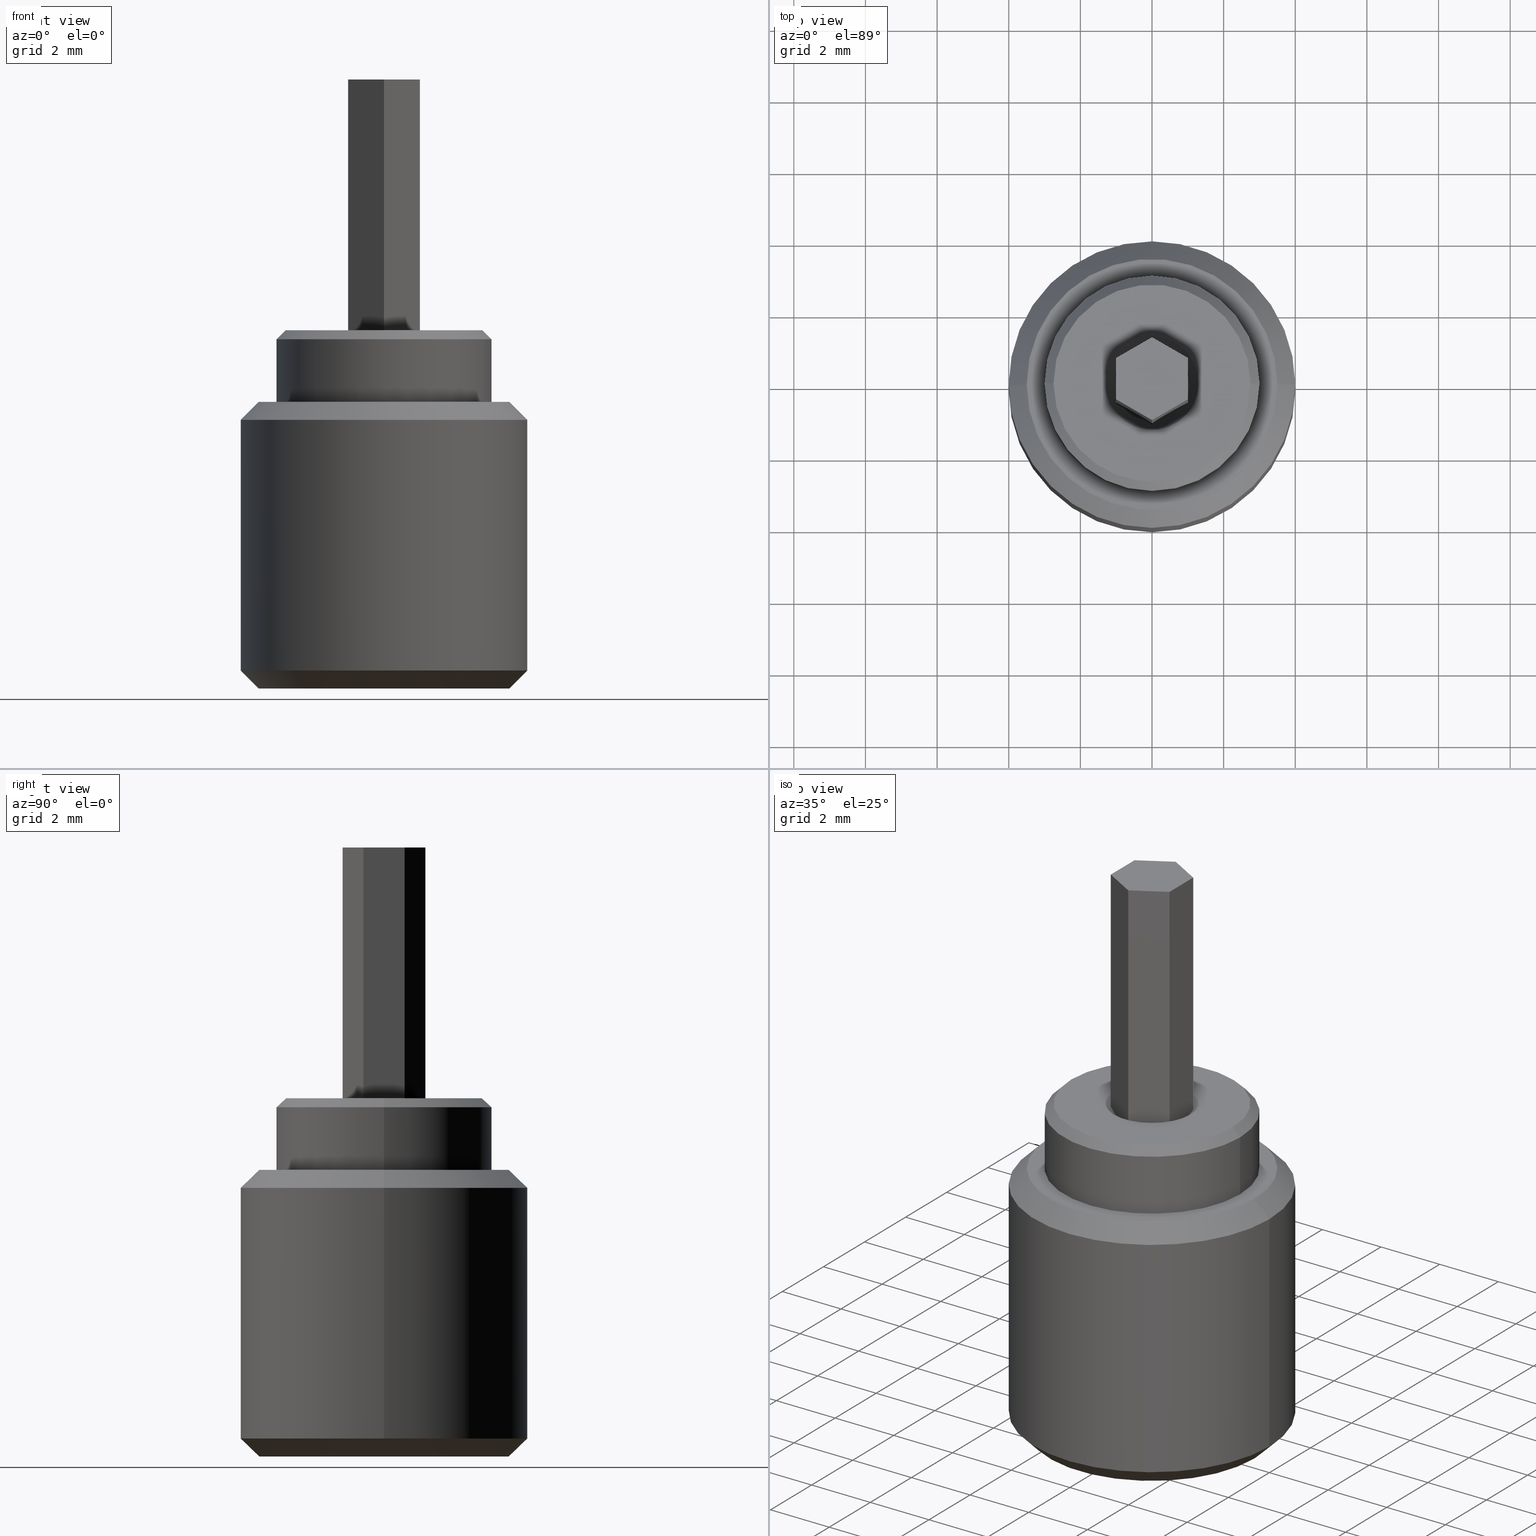
[diagram: canonical four-view strip — front | top / right | iso, engineering-drawing reading convention]
A machine part, canonical four-view strip (front | top / right | iso — engineering-drawing reading convention). The complete STEP part file that produces these views, byte-faithful:
ISO-10303-21;
HEADER;
FILE_DESCRIPTION (( 'STEP AP203' ),
    '1' );
FILE_NAME ('1.8.4.1_ZFN-#2-0810_��׼2x2mm��š��ĸ����4mm��������8mm��L=10mm.STEP',
    '2024-05-31T07:32:04',
    ( '' ),
    ( '' ),
    'SwSTEP 2.0',
    'SolidWorks 2021',
    '' );
FILE_SCHEMA (( 'CONFIG_CONTROL_DESIGN' ));
ENDSEC;

DATA;
#1 = VECTOR ( 'NONE', #591, 1000.000000000000000 ) ;
#2 = CARTESIAN_POINT ( 'NONE',  ( 0.000000000000000000, 0.000000000000000000, 9.749999999999998224 ) ) ;
#3 = ORIENTED_EDGE ( 'NONE', *, *, #193, .T. ) ;
#4 = EDGE_CURVE ( 'NONE', #32, #102, #740, .T. ) ;
#5 = DIRECTION ( 'NONE',  ( 0.000000000000000000, 0.000000000000000000, -1.000000000000000000 ) ) ;
#6 = EDGE_LOOP ( 'NONE', ( #213, #336, #48, #945 ) ) ;
#7 = PERSON_AND_ORGANIZATION_ROLE ( 'creator' ) ;
#8 = LINE ( 'NONE', #181, #190 ) ;
#9 = VECTOR ( 'NONE', #187, 1000.000000000000000 ) ;
#10 = ORIENTED_EDGE ( 'NONE', *, *, #456, .T. ) ;
#11 = APPROVAL_STATUS ( 'not_yet_approved' ) ;
#12 = EDGE_CURVE ( 'NONE', #83, #20, #730, .T. ) ;
#13 = DIRECTION ( 'NONE',  ( -1.000000000000000000, 0.000000000000000000, 0.000000000000000000 ) ) ;
#14 = CONICAL_SURFACE ( 'NONE', #570, 4.000000000000000000, 0.7853981633974491672 ) ;
#15 = APPROVAL_PERSON_ORGANIZATION ( #275, #603, #538 ) ;
#16 = ORIENTED_EDGE ( 'NONE', *, *, #659, .T. ) ;
#17 = CARTESIAN_POINT ( 'NONE',  ( -4.000000000000000000, 0.000000000000000000, 0.5000000000000022204 ) ) ;
#18 = CC_DESIGN_PERSON_AND_ORGANIZATION_ASSIGNMENT ( #982, #207, ( #974 ) ) ;
#19 = AXIS2_PLACEMENT_3D ( 'NONE', #235, #161, #934 ) ;
#20 = VERTEX_POINT ( 'NONE', #423 ) ;
#21 = COORDINATED_UNIVERSAL_TIME_OFFSET ( 8, 0, .AHEAD. ) ;
#22 = DIRECTION ( 'NONE',  ( 3.755786496842898071E-16, -1.000000000000000000, 0.000000000000000000 ) ) ;
#23 = ORIENTED_EDGE ( 'NONE', *, *, #793, .F. ) ;
#24 = EDGE_CURVE ( 'NONE', #514, #368, #428, .T. ) ;
#25 = DIRECTION ( 'NONE',  ( -0.7071067811865482389, 0.000000000000000000, -0.7071067811865469066 ) ) ;
#26 = ORIENTED_EDGE ( 'NONE', *, *, #981, .F. ) ;
#27 = AXIS2_PLACEMENT_3D ( 'NONE', #231, #522, #899 ) ;
#28 = ADVANCED_FACE ( 'NONE', ( #878 ), #439, .F. ) ;
#29 = CARTESIAN_POINT ( 'NONE',  ( 0.000000000000000000, 0.000000000000000000, 8.000000000000000000 ) ) ;
#30 = DIRECTION ( 'NONE',  ( 1.000000000000000000, 0.000000000000000000, 0.000000000000000000 ) ) ;
#31 = SECURITY_CLASSIFICATION ( '', '', #435 ) ;
#32 = VERTEX_POINT ( 'NONE', #954 ) ;
#33 = CARTESIAN_POINT ( 'NONE',  ( 0.000000000000000000, 0.000000000000000000, 10.00000000000000000 ) ) ;
#34 = CALENDAR_DATE ( 2024, 31, 5 ) ;
#35 = DIRECTION ( 'NONE',  ( 0.000000000000000000, 0.000000000000000000, 1.000000000000000000 ) ) ;
#36 = CIRCLE ( 'NONE', #536, 3.500000000000000444 ) ;
#37 = DIRECTION ( 'NONE',  ( 0.000000000000000000, 0.000000000000000000, 1.000000000000000000 ) ) ;
#38 = EDGE_CURVE ( 'NONE', #696, #462, #202, .T. ) ;
#39 = DATE_TIME_ROLE ( 'classification_date' ) ;
#40 = CARTESIAN_POINT ( 'NONE',  ( 0.000000000000000000, 0.000000000000000000, 10.00000000000000000 ) ) ;
#41 = LOCAL_TIME ( 15, 32, 4.000000000000000000, #720 ) ;
#42 = VECTOR ( 'NONE', #262, 999.9999999999998863 ) ;
#43 = DESIGN_CONTEXT ( 'detailed design', #819, 'design' ) ;
#44 = DIRECTION ( 'NONE',  ( -1.000000000000000000, 0.000000000000000000, 0.000000000000000000 ) ) ;
#45 = CALENDAR_DATE ( 2024, 31, 5 ) ;
#46 = EDGE_CURVE ( 'NONE', #32, #958, #726, .T. ) ;
#47 = DIRECTION ( 'NONE',  ( 1.000000000000000000, 0.000000000000000000, 0.000000000000000000 ) ) ;
#48 = ORIENTED_EDGE ( 'NONE', *, *, #284, .F. ) ;
#49 = APPROVAL_PERSON_ORGANIZATION ( #850, #802, #463 ) ;
#50 = PERSON_AND_ORGANIZATION_ROLE ( 'classification_officer' ) ;
#51 = DIRECTION ( 'NONE',  ( 1.000000000000000000, 0.000000000000000000, 0.000000000000000000 ) ) ;
#52 = EDGE_CURVE ( 'NONE', #475, #180, #36, .T. ) ;
#53 = CALENDAR_DATE ( 2024, 31, 5 ) ;
#54 = CARTESIAN_POINT ( 'NONE',  ( 0.000000000000000000, 0.000000000000000000, 9.749999999999998224 ) ) ;
#55 = DATE_TIME_ROLE ( 'classification_date' ) ;
#56 = COORDINATED_UNIVERSAL_TIME_OFFSET ( 8, 0, .AHEAD. ) ;
#57 = DIRECTION ( 'NONE',  ( 0.000000000000000000, 0.000000000000000000, 1.000000000000000000 ) ) ;
#58 = ORIENTED_EDGE ( 'NONE', *, *, #193, .F. ) ;
#59 = DATE_AND_TIME ( #917, #69 ) ;
#60 = EDGE_CURVE ( 'NONE', #620, #374, #115, .T. ) ;
#61 = VECTOR ( 'NONE', #604, 1000.000000000000000 ) ;
#62 = LOCAL_TIME ( 15, 32, 4.000000000000000000, #360 ) ;
#63 = AXIS2_PLACEMENT_3D ( 'NONE', #416, #948, #44 ) ;
#64 = CARTESIAN_POINT ( 'NONE',  ( -4.000000000000000000, 4.898587196589412829E-16, 0.5000000000000022204 ) ) ;
#65 = APPROVAL_STATUS ( 'not_yet_approved' ) ;
#66 = FACE_OUTER_BOUND ( 'NONE', #688, .T. ) ;
#67 = ORIENTED_EDGE ( 'NONE', *, *, #472, .F. ) ;
#68 = PERSON_AND_ORGANIZATION_ROLE ( 'creator' ) ;
#69 = LOCAL_TIME ( 15, 32, 4.000000000000000000, #973 ) ;
#70 =( LENGTH_UNIT ( ) NAMED_UNIT ( * ) SI_UNIT ( .MILLI., .METRE. ) );
#71 = EDGE_CURVE ( 'NONE', #368, #183, #486, .T. ) ;
#72 = DIRECTION ( 'NONE',  ( -0.000000000000000000, -0.000000000000000000, -1.000000000000000000 ) ) ;
#73 = ORIENTED_EDGE ( 'NONE', *, *, #821, .F. ) ;
#74 = DATE_AND_TIME ( #537, #312 ) ;
#75 = CYLINDRICAL_SURFACE ( 'NONE', #417, 3.000000000000000444 ) ;
#76 = DIRECTION ( 'NONE',  ( 1.000000000000000000, 0.000000000000000000, 0.000000000000000000 ) ) ;
#77 = CC_DESIGN_PERSON_AND_ORGANIZATION_ASSIGNMENT ( #531, #364, ( #31 ) ) ;
#78 = ORIENTED_EDGE ( 'NONE', *, *, #242, .T. ) ;
#79 = COORDINATED_UNIVERSAL_TIME_OFFSET ( 8, 0, .AHEAD. ) ;
#80 = AXIS2_PLACEMENT_3D ( 'NONE', #171, #474, #705 ) ;
#81 = CC_DESIGN_SECURITY_CLASSIFICATION ( #913, ( #979 ) ) ;
#82 = CARTESIAN_POINT ( 'NONE',  ( 2.749999999999999112, 3.520859547548640440E-16, 10.00000000000000000 ) ) ;
#83 = VERTEX_POINT ( 'NONE', #582 ) ;
#84 = PERSON_AND_ORGANIZATION ( #340, #803 ) ;
#85 = CARTESIAN_POINT ( 'NONE',  ( -3.500000000000000444, 0.000000000000000000, 8.000000000000000000 ) ) ;
#86 = ORIENTED_EDGE ( 'NONE', *, *, #811, .T. ) ;
#87 = EDGE_CURVE ( 'NONE', #481, #146, #186, .T. ) ;
#88 = LINE ( 'NONE', #395, #397 ) ;
#89 = CIRCLE ( 'NONE', #639, 4.000000000000000000 ) ;
#90 = ORIENTED_EDGE ( 'NONE', *, *, #311, .F. ) ;
#91 = PERSON ( 'NAUO-PER2', 'UNSPECIFIED', 'UNSPECIFIED', ('UNSPECIFIED'), ('UNSPECIFIED'), ('UNSPECIFIED') ) ;
#92 = CC_DESIGN_DATE_AND_TIME_ASSIGNMENT ( #196, #495, ( #478 ) ) ;
#93 = DIRECTION ( 'NONE',  ( -0.000000000000000000, -0.000000000000000000, 1.000000000000000000 ) ) ;
#94 = CC_DESIGN_APPROVAL ( #773, ( #974 ) ) ;
#95 = AXIS2_PLACEMENT_3D ( 'NONE', #724, #37, #799 ) ;
#96 = ORIENTED_EDGE ( 'NONE', *, *, #811, .F. ) ;
#97 = APPLICATION_PROTOCOL_DEFINITION ( 'international standard', 'config_control_design', 1994, #248 ) ;
#98 = APPLICATION_CONTEXT ( 'configuration controlled 3d designs of mechanical parts and assemblies' ) ;
#99 = CC_DESIGN_DATE_AND_TIME_ASSIGNMENT ( #976, #39, ( #399 ) ) ;
#100 = DIRECTION ( 'NONE',  ( 0.7071067811865487940, 0.000000000000000000, 0.7071067811865463515 ) ) ;
#101 = EDGE_CURVE ( 'NONE', #620, #183, #349, .T. ) ;
#102 = VERTEX_POINT ( 'NONE', #271 ) ;
#103 = SHAPE_REPRESENTATION ( '1.8.4.1_ZFN-#2-0810_��׼2x2mm��š��ĸ����4mm��������8mm��L=10mm', ( #453, #580, #857 ), #633 ) ;
#104 = LINE ( 'NONE', #791, #523 ) ;
#105 = CC_DESIGN_PERSON_AND_ORGANIZATION_ASSIGNMENT ( #520, #840, ( #583 ) ) ;
#106 = CIRCLE ( 'NONE', #381, 4.000000000000000000 ) ;
#107 = ORIENTED_EDGE ( 'NONE', *, *, #124, .T. ) ;
#108 = LINE ( 'NONE', #260, #148 ) ;
#109 = PRODUCT_DEFINITION_SHAPE ( 'NONE', 'NONE',  #909 ) ;
#110 = DIRECTION ( 'NONE',  ( -0.000000000000000000, -0.000000000000000000, 1.000000000000000000 ) ) ;
#111 = CC_DESIGN_APPROVAL ( #378, ( #979 ) ) ;
#112 = EDGE_LOOP ( 'NONE', ( #693, #16, #625, #871 ) ) ;
#113 = DIRECTION ( 'NONE',  ( -0.000000000000000000, -0.000000000000000000, -1.000000000000000000 ) ) ;
#114 = APPROVAL_ROLE ( '' ) ;
#115 = LINE ( 'NONE', #736, #9 ) ;
#116 = CIRCLE ( 'NONE', #530, 1.300000000000006040 ) ;
#117 = ORIENTED_EDGE ( 'NONE', *, *, #456, .F. ) ;
#118 = EDGE_CURVE ( 'NONE', #958, #600, #106, .T. ) ;
#119 = CARTESIAN_POINT ( 'NONE',  ( -1.050000000000000044, 1.285879139104720978E-16, 6.000000000000000000 ) ) ;
#120 = CALENDAR_DATE ( 2024, 31, 5 ) ;
#121 = CARTESIAN_POINT ( 'NONE',  ( 0.000000000000000000, 0.000000000000000000, 0.5000000000000022204 ) ) ;
#122 = ORIENTED_EDGE ( 'NONE', *, *, #124, .F. ) ;
#123 = VECTOR ( 'NONE', #197, 1000.000000000000000 ) ;
#124 = EDGE_CURVE ( 'NONE', #173, #584, #792, .T. ) ;
#125 = PLANE ( 'NONE',  #95 ) ;
#126 = APPROVAL_STATUS ( 'not_yet_approved' ) ;
#127 = LINE ( 'NONE', #644, #723 ) ;
#128 = ORIENTED_EDGE ( 'NONE', *, *, #717, .F. ) ;
#129 = VECTOR ( 'NONE', #545, 1000.000000000000000 ) ;
#130 = APPROVAL_PERSON_ORGANIZATION ( #244, #378, #471 ) ;
#131 = AXIS2_PLACEMENT_3D ( 'NONE', #613, #975, #829 ) ;
#132 = DIRECTION ( 'NONE',  ( 1.000000000000000000, 0.000000000000000000, 0.000000000000000000 ) ) ;
#133 = APPLICATION_PROTOCOL_DEFINITION ( 'international standard', 'config_control_design', 1994, #98 ) ;
#134 = DIRECTION ( 'NONE',  ( -0.000000000000000000, -0.000000000000000000, 1.000000000000000000 ) ) ;
#135 = EDGE_CURVE ( 'NONE', #102, #32, #89, .T. ) ;
#136 = PERSON_AND_ORGANIZATION_ROLE ( 'design_supplier' ) ;
#137 = FACE_OUTER_BOUND ( 'NONE', #160, .T. ) ;
#138 = DIRECTION ( 'NONE',  ( 0.8660254037844385966, 0.4999999999999999445, 0.000000000000000000 ) ) ;
#139 = APPROVAL ( #189, 'δָ��' ) ;
#140 = EDGE_LOOP ( 'NONE', ( #330, #551, #890, #23 ) ) ;
#141 = APPROVAL_DATE_TIME ( #300, #356 ) ;
#142 = CIRCLE ( 'NONE', #668, 3.500000000000000444 ) ;
#143 = CARTESIAN_POINT ( 'NONE',  ( 1.000000000000000000, -0.5773502691896266192, -4.000000000000000000 ) ) ;
#144 = PERSON_AND_ORGANIZATION_ROLE ( 'design_owner' ) ;
#145 = DIRECTION ( 'NONE',  ( 1.000000000000000000, 0.000000000000000000, 0.000000000000000000 ) ) ;
#146 = VERTEX_POINT ( 'NONE', #414 ) ;
#147 = ORGANIZATION ( 'NAUO-ORG1', 'UNSPECIFIED', 'UNSPECIFIED' ) ;
#148 = VECTOR ( 'NONE', #25, 999.9999999999998863 ) ;
#149 = DIRECTION ( 'NONE',  ( 0.000000000000000000, 0.000000000000000000, 1.000000000000000000 ) ) ;
#150 = FACE_OUTER_BOUND ( 'NONE', #391, .T. ) ;
#151 = EDGE_LOOP ( 'NONE', ( #606, #314, #310, #164, #346, #786 ) ) ;
#152 = COORDINATED_UNIVERSAL_TIME_OFFSET ( 8, 0, .AHEAD. ) ;
#153 = ADVANCED_FACE ( 'NONE', ( #949 ), #966, .T. ) ;
#154 = APPLICATION_CONTEXT ( 'configuration controlled 3d designs of mechanical parts and assemblies' ) ;
#155 = DIRECTION ( 'NONE',  ( -0.000000000000000000, -0.000000000000000000, 1.000000000000000000 ) ) ;
#156 = ORIENTED_EDGE ( 'NONE', *, *, #760, .F. ) ;
#157 = APPROVAL_STATUS ( 'not_yet_approved' ) ;
#158 = DATE_AND_TIME ( #281, #447 ) ;
#159 = DIRECTION ( 'NONE',  ( 1.000000000000000000, 0.000000000000000000, 0.000000000000000000 ) ) ;
#160 = EDGE_LOOP ( 'NONE', ( #58, #636, #824, #609 ) ) ;
#161 = DIRECTION ( 'NONE',  ( 0.000000000000000000, 0.000000000000000000, 1.000000000000000000 ) ) ;
#162 = CARTESIAN_POINT ( 'NONE',  ( -1.000000000000000000, -0.5773502691896256200, 7.000000000000000888 ) ) ;
#163 = EDGE_CURVE ( 'NONE', #932, #816, #127, .T. ) ;
#164 = ORIENTED_EDGE ( 'NONE', *, *, #637, .F. ) ;
#165 = CALENDAR_DATE ( 2024, 31, 5 ) ;
#166 = APPLICATION_PROTOCOL_DEFINITION ( 'international standard', 'config_control_design', 1994, #154 ) ;
#167 = CARTESIAN_POINT ( 'NONE',  ( 0.9999999999999997780, 0.5773502691896261751, 7.000000000000000888 ) ) ;
#168 = EDGE_LOOP ( 'NONE', ( #470, #767 ) ) ;
#169 = ADVANCED_FACE ( 'NONE', ( #507 ), #830, .T. ) ;
#170 = DATE_AND_TIME ( #876, #182 ) ;
#171 = CARTESIAN_POINT ( 'NONE',  ( -1.000000000000000444, 0.5773502691896260641, -4.000000000000000000 ) ) ;
#172 = VECTOR ( 'NONE', #35, 1000.000000000000000 ) ;
#173 = VERTEX_POINT ( 'NONE', #261 ) ;
#174 = CALENDAR_DATE ( 2024, 31, 5 ) ;
#175 = EDGE_CURVE ( 'NONE', #180, #475, #142, .T. ) ;
#176 = FACE_OUTER_BOUND ( 'NONE', #168, .T. ) ;
#177 = CIRCLE ( 'NONE', #240, 1.050000000000000044 ) ;
#178 = LOCAL_TIME ( 15, 32, 4.000000000000000000, #21 ) ;
#179 = VECTOR ( 'NONE', #515, 1000.000000000000000 ) ;
#180 = VERTEX_POINT ( 'NONE', #339 ) ;
#181 = CARTESIAN_POINT ( 'NONE',  ( 1.000000000000000000, -0.5773502691896266192, -4.000000000000000000 ) ) ;
#182 = LOCAL_TIME ( 15, 32, 4.000000000000000000, #392 ) ;
#183 = VERTEX_POINT ( 'NONE', #764 ) ;
#184 = CARTESIAN_POINT ( 'NONE',  ( 0.000000000000000000, 0.000000000000000000, 10.00000000000000000 ) ) ;
#185 = APPROVAL ( #831, 'UNKNOWN' ) ;
#186 = CIRCLE ( 'NONE', #810, 2.749999999999999112 ) ;
#187 = DIRECTION ( 'NONE',  ( 3.755786496842898071E-16, -1.000000000000000000, 0.000000000000000000 ) ) ;
#188 = CYLINDRICAL_SURFACE ( 'NONE', #63, 4.000000000000000000 ) ;
#189 = APPROVAL_STATUS ( 'not_yet_approved' ) ;
#190 = VECTOR ( 'NONE', #246, 1000.000000000000000 ) ;
#191 = CARTESIAN_POINT ( 'NONE',  ( 4.000000000000000000, 4.898587196589412829E-16, 10.00000000000000000 ) ) ;
#192 = LOCAL_TIME ( 15, 32, 4.000000000000000000, #729 ) ;
#193 = EDGE_CURVE ( 'NONE', #789, #173, #683, .T. ) ;
#194 = VERTEX_POINT ( 'NONE', #517 ) ;
#195 = DIRECTION ( 'NONE',  ( 1.000000000000000000, 0.000000000000000000, 0.000000000000000000 ) ) ;
#196 = DATE_AND_TIME ( #45, #62 ) ;
#197 = DIRECTION ( 'NONE',  ( 0.000000000000000000, 0.000000000000000000, 1.000000000000000000 ) ) ;
#198 = APPROVAL ( #11, 'δָ��' ) ;
#199 = PRODUCT_DEFINITION_SHAPE ( 'NONE', 'NONE',  #784 ) ;
#200 = CARTESIAN_POINT ( 'NONE',  ( -4.000000000000000000, 0.000000000000000000, 10.00000000000000000 ) ) ;
#201 = CALENDAR_DATE ( 2024, 31, 5 ) ;
#202 = LINE ( 'NONE', #807, #123 ) ;
#203 =( REPRESENTATION_RELATIONSHIP ('NONE','NONE', #103, #204 ) REPRESENTATION_RELATIONSHIP_WITH_TRANSFORMATION ( #276 )SHAPE_REPRESENTATION_RELATIONSHIP( ) );
#204 = SHAPE_REPRESENTATION ( '���1^1.8.4.1_ZFN-#2-0810_��׼2x2mm��š��ĸ����4mm��������8mm��L=10mm', ( #734 ), #599 ) ;
#205 = ADVANCED_FACE ( 'NONE', ( #598 ), #832, .T. ) ;
#206 = CARTESIAN_POINT ( 'NONE',  ( -1.000000000000000000, -0.5773502691896256200, 7.000000000000000888 ) ) ;
#207 = PERSON_AND_ORGANIZATION_ROLE ( 'creator' ) ;
#208 = DIRECTION ( 'NONE',  ( 0.000000000000000000, 0.000000000000000000, 1.000000000000000000 ) ) ;
#209 = CARTESIAN_POINT ( 'NONE',  ( 0.000000000000000000, 0.000000000000000000, 0.000000000000000000 ) ) ;
#210 = CC_DESIGN_PERSON_AND_ORGANIZATION_ASSIGNMENT ( #702, #326, ( #979 ) ) ;
#211 = PERSON_AND_ORGANIZATION ( #340, #803 ) ;
#212 = CARTESIAN_POINT ( 'NONE',  ( 0.000000000000000000, 0.000000000000000000, 7.000000000000000888 ) ) ;
#213 = ORIENTED_EDGE ( 'NONE', *, *, #101, .T. ) ;
#214 = CC_DESIGN_SECURITY_CLASSIFICATION ( #31, ( #844 ) ) ;
#215 = DIRECTION ( 'NONE',  ( 0.8660254037844385966, 0.4999999999999999445, 0.000000000000000000 ) ) ;
#216 = APPROVAL_DATE_TIME ( #343, #139 ) ;
#217 = LINE ( 'NONE', #593, #393 ) ;
#218 = ORIENTED_EDGE ( 'NONE', *, *, #426, .F. ) ;
#219 = AXIS2_PLACEMENT_3D ( 'NONE', #383, #72, #145 ) ;
#220 = LINE ( 'NONE', #746, #179 ) ;
#221 = CARTESIAN_POINT ( 'NONE',  ( 0.000000000000000000, 0.000000000000000000, -4.000000000000000000 ) ) ;
#222 = ORIENTED_EDGE ( 'NONE', *, *, #526, .T. ) ;
#223 = EDGE_CURVE ( 'NONE', #541, #757, #265, .T. ) ;
#224 = AXIS2_PLACEMENT_3D ( 'NONE', #619, #332, #480 ) ;
#225 = CC_DESIGN_SECURITY_CLASSIFICATION ( #796, ( #991 ) ) ;
#226 = CONICAL_SURFACE ( 'NONE', #448, 4.000000000000000000, 0.7853981633974500554 ) ;
#227 = CARTESIAN_POINT ( 'NONE',  ( 0.000000000000000000, 0.000000000000000000, 10.00000000000000000 ) ) ;
#228 = FACE_OUTER_BOUND ( 'NONE', #529, .T. ) ;
#229 = MANIFOLD_SOLID_BREP ( '����2', #565 ) ;
#230 = ORIENTED_EDGE ( 'NONE', *, *, #87, .F. ) ;
#231 = CARTESIAN_POINT ( 'NONE',  ( 1.729889894353566957E-16, 1.154700538379251684, -4.000000000000000000 ) ) ;
#232 = ORIENTED_EDGE ( 'NONE', *, *, #236, .T. ) ;
#233 = CALENDAR_DATE ( 2024, 31, 5 ) ;
#234 = VECTOR ( 'NONE', #134, 1000.000000000000000 ) ;
#235 = CARTESIAN_POINT ( 'NONE',  ( 0.000000000000000000, 0.000000000000000000, 0.000000000000000000 ) ) ;
#236 = EDGE_CURVE ( 'NONE', #795, #194, #217, .T. ) ;
#237 = FACE_OUTER_BOUND ( 'NONE', #854, .T. ) ;
#238 = EDGE_LOOP ( 'NONE', ( #294, #452 ) ) ;
#239 = LOCAL_TIME ( 15, 32, 4.000000000000000000, #927 ) ;
#240 = AXIS2_PLACEMENT_3D ( 'NONE', #2, #57, #460 ) ;
#241 = DIRECTION ( 'NONE',  ( -0.000000000000000000, -0.000000000000000000, -1.000000000000000000 ) ) ;
#242 = EDGE_CURVE ( 'NONE', #762, #83, #955, .T. ) ;
#243 = ORIENTED_EDGE ( 'NONE', *, *, #485, .F. ) ;
#244 = PERSON_AND_ORGANIZATION ( #340, #803 ) ;
#245 = DIRECTION ( 'NONE',  ( 0.000000000000000000, 0.000000000000000000, 1.000000000000000000 ) ) ;
#246 = DIRECTION ( 'NONE',  ( -1.877893248421447310E-16, 1.000000000000000000, 0.000000000000000000 ) ) ;
#247 = ORIENTED_EDGE ( 'NONE', *, *, #864, .T. ) ;
#248 = APPLICATION_CONTEXT ( 'configuration controlled 3d designs of mechanical parts and assemblies' ) ;
#249 = ADVANCED_FACE ( 'NONE', ( #685 ), #361, .F. ) ;
#250 = CARTESIAN_POINT ( 'NONE',  ( -1.300000000000006040, 1.592040838891566491E-16, 10.00000000000000000 ) ) ;
#251 = VECTOR ( 'NONE', #957, 1000.000000000000000 ) ;
#252 = ORIENTED_EDGE ( 'NONE', *, *, #694, .F. ) ;
#253 = PRODUCT_DEFINITION ( 'δ֪', '', #979, #578 ) ;
#254 = FACE_OUTER_BOUND ( 'NONE', #988, .T. ) ;
#255 = AXIS2_PLACEMENT_3D ( 'NONE', #528, #155, #313 ) ;
#256 = ORGANIZATION ( 'NAUO-ORG2', 'UNSPECIFIED', 'UNSPECIFIED' ) ;
#257 = AXIS2_PLACEMENT_3D ( 'NONE', #209, #759, #132 ) ;
#258 = ORIENTED_EDGE ( 'NONE', *, *, #793, .T. ) ;
#259 = UNCERTAINTY_MEASURE_WITH_UNIT (LENGTH_MEASURE( 1.000000000000000082E-05 ), #70, 'distance_accuracy_value', 'NONE');
#260 = CARTESIAN_POINT ( 'NONE',  ( -4.000000000000000000, 0.000000000000000000, 7.500000000000001776 ) ) ;
#261 = CARTESIAN_POINT ( 'NONE',  ( -1.050000000000000044, 1.285879139104720978E-16, 9.749999999999998224 ) ) ;
#262 = DIRECTION ( 'NONE',  ( 0.7071067811865531239, 0.000000000000000000, 0.7071067811865420216 ) ) ;
#263 = ADVANCED_FACE ( 'NONE', ( #66 ), #750, .T. ) ;
#264 = APPROVAL_DATE_TIME ( #800, #378 ) ;
#265 = CIRCLE ( 'NONE', #648, 3.499999999999996003 ) ;
#266 = CARTESIAN_POINT ( 'NONE',  ( 0.000000000000000000, 0.000000000000000000, 7.500000000000001776 ) ) ;
#267 = ORIENTED_EDGE ( 'NONE', *, *, #135, .T. ) ;
#268 = DIRECTION ( 'NONE',  ( -0.000000000000000000, -0.000000000000000000, 1.000000000000000000 ) ) ;
#269 = CC_DESIGN_PERSON_AND_ORGANIZATION_ASSIGNMENT ( #500, #144, ( #652 ) ) ;
#270 = CIRCLE ( 'NONE', #544, 1.050000000000000044 ) ;
#271 = CARTESIAN_POINT ( 'NONE',  ( -4.000000000000000000, 0.000000000000000000, 7.500000000000001776 ) ) ;
#272 = AXIS2_PLACEMENT_3D ( 'NONE', #184, #274, #812 ) ;
#273 = ORIENTED_EDGE ( 'NONE', *, *, #760, .T. ) ;
#274 = DIRECTION ( 'NONE',  ( 0.000000000000000000, 0.000000000000000000, 1.000000000000000000 ) ) ;
#275 = PERSON_AND_ORGANIZATION ( #91, #256 ) ;
#276 = ITEM_DEFINED_TRANSFORMATION ( 'NONE', 'NONE', #857,  #734 ) ;
#277 = CARTESIAN_POINT ( 'NONE',  ( 0.000000000000000000, 0.000000000000000000, 9.749999999999998224 ) ) ;
#278 = EDGE_LOOP ( 'NONE', ( #713, #651 ) ) ;
#279 = EDGE_CURVE ( 'NONE', #83, #762, #676, .T. ) ;
#280 = CARTESIAN_POINT ( 'NONE',  ( 0.000000000000000000, 0.000000000000000000, 9.749999999999996447 ) ) ;
#281 = CALENDAR_DATE ( 2024, 31, 5 ) ;
#282 = DATE_TIME_ROLE ( 'creation_date' ) ;
#283 = DIRECTION ( 'NONE',  ( -0.7071067811865531239, 8.659560562355001884E-17, 0.7071067811865420216 ) ) ;
#284 = EDGE_CURVE ( 'NONE', #194, #368, #827, .T. ) ;
#285 = PLANE ( 'NONE',  #558 ) ;
#286 = PERSON_AND_ORGANIZATION_ROLE ( 'classification_officer' ) ;
#287 = DATE_AND_TIME ( #201, #818 ) ;
#288 = FACE_OUTER_BOUND ( 'NONE', #6, .T. ) ;
#289 = VECTOR ( 'NONE', #940, 1000.000000000000114 ) ;
#290 = DIRECTION ( 'NONE',  ( 1.000000000000000000, 0.000000000000000000, 0.000000000000000000 ) ) ;
#291 = APPROVAL_STATUS ( 'not_yet_approved' ) ;
#292 = DATE_AND_TIME ( #674, #543 ) ;
#293 = DIRECTION ( 'NONE',  ( -0.7071067811865444641, 0.000000000000000000, -0.7071067811865505703 ) ) ;
#294 = ORIENTED_EDGE ( 'NONE', *, *, #717, .T. ) ;
#295 = AXIS2_PLACEMENT_3D ( 'NONE', #436, #602, #430 ) ;
#296 = DIRECTION ( 'NONE',  ( 0.000000000000000000, 0.000000000000000000, -1.000000000000000000 ) ) ;
#297 = DIRECTION ( 'NONE',  ( 1.000000000000000000, 0.000000000000000000, 0.000000000000000000 ) ) ;
#298 = EDGE_CURVE ( 'NONE', #678, #789, #270, .T. ) ;
#299 = ORIENTED_EDGE ( 'NONE', *, *, #24, .F. ) ;
#300 = DATE_AND_TIME ( #53, #357 ) ;
#301 = FACE_OUTER_BOUND ( 'NONE', #896, .T. ) ;
#302 = DIRECTION ( 'NONE',  ( 0.000000000000000000, -0.000000000000000000, 1.000000000000000000 ) ) ;
#303 = APPROVAL ( #65, 'δָ��' ) ;
#304 = ORIENTED_EDGE ( 'NONE', *, *, #753, .T. ) ;
#305 = APPROVAL_STATUS ( 'not_yet_approved' ) ;
#306 = AXIS2_PLACEMENT_3D ( 'NONE', #221, #302, #977 ) ;
#307 = AXIS2_PLACEMENT_3D ( 'NONE', #54, #149, #980 ) ;
#308 = DIRECTION ( 'NONE',  ( 1.000000000000000000, 0.000000000000000000, -0.000000000000000000 ) ) ;
#309 = PLANE ( 'NONE',  #306 ) ;
#310 = ORIENTED_EDGE ( 'NONE', *, *, #60, .F. ) ;
#311 = EDGE_CURVE ( 'NONE', #777, #173, #177, .T. ) ;
#312 = LOCAL_TIME ( 15, 32, 4.000000000000000000, #911 ) ;
#313 = DIRECTION ( 'NONE',  ( 1.000000000000000000, 0.000000000000000000, 0.000000000000000000 ) ) ;
#314 = ORIENTED_EDGE ( 'NONE', *, *, #576, .F. ) ;
#315 = COORDINATED_UNIVERSAL_TIME_OFFSET ( 8, 0, .AHEAD. ) ;
#316 = CC_DESIGN_DATE_AND_TIME_ASSIGNMENT ( #331, #707, ( #913 ) ) ;
#317 = CARTESIAN_POINT ( 'NONE',  ( 0.000000000000000000, 0.000000000000000000, 0.000000000000000000 ) ) ;
#318 = CARTESIAN_POINT ( 'NONE',  ( 1.022704979279545093E-15, -1.154700538379251906, 7.000000000000000888 ) ) ;
#319 = ORIENTED_EDGE ( 'NONE', *, *, #38, .T. ) ;
#320 = APPROVAL_DATE_TIME ( #170, #198 ) ;
#321 = VECTOR ( 'NONE', #22, 1000.000000000000000 ) ;
#322 = CC_DESIGN_APPROVAL ( #185, ( #399 ) ) ;
#323 = CIRCLE ( 'NONE', #257, 3.499999999999996003 ) ;
#324 = CARTESIAN_POINT ( 'NONE',  ( 2.749999999999999112, 3.367778697655220026E-16, 10.00000000000000000 ) ) ;
#325 = ORIENTED_EDGE ( 'NONE', *, *, #298, .T. ) ;
#326 = PERSON_AND_ORGANIZATION_ROLE ( 'design_supplier' ) ;
#327 =( LENGTH_UNIT ( ) NAMED_UNIT ( * ) SI_UNIT ( .MILLI., .METRE. ) );
#328 = CARTESIAN_POINT ( 'NONE',  ( -1.000000000000000444, 0.5773502691896260641, -4.000000000000000000 ) ) ;
#329 = ADVANCED_FACE ( 'NONE', ( #534 ), #309, .F. ) ;
#330 = ORIENTED_EDGE ( 'NONE', *, *, #441, .F. ) ;
#331 = DATE_AND_TIME ( #404, #178 ) ;
#332 = DIRECTION ( 'NONE',  ( 0.000000000000000000, 0.000000000000000000, 1.000000000000000000 ) ) ;
#333 = CARTESIAN_POINT ( 'NONE',  ( 0.000000000000000000, 0.000000000000000000, 7.500000000000001776 ) ) ;
#334 = DIRECTION ( 'NONE',  ( 0.000000000000000000, 0.000000000000000000, -1.000000000000000000 ) ) ;
#335 = VECTOR ( 'NONE', #409, 1000.000000000000000 ) ;
#336 = ORIENTED_EDGE ( 'NONE', *, *, #71, .F. ) ;
#337 = CARTESIAN_POINT ( 'NONE',  ( 1.050000000000000044, 0.000000000000000000, 9.749999999999998224 ) ) ;
#338 = CC_DESIGN_APPROVAL ( #642, ( #844 ) ) ;
#339 = CARTESIAN_POINT ( 'NONE',  ( 3.500000000000000444, 4.592425496802574958E-16, 8.000000000000000000 ) ) ;
#340 = PERSON ( 'δָ��', 'δָ��', 'δָ��', ('δָ��'), ('δָ��'), ('δָ��') ) ;
#341 = CC_DESIGN_DATE_AND_TIME_ASSIGNMENT ( #592, #282, ( #784 ) ) ;
#342 = DIRECTION ( 'NONE',  ( -1.877893248421447310E-16, 1.000000000000000000, 0.000000000000000000 ) ) ;
#343 = DATE_AND_TIME ( #34, #41 ) ;
#344 = AXIS2_PLACEMENT_3D ( 'NONE', #373, #379, #138 ) ;
#345 = DIRECTION ( 'NONE',  ( -0.000000000000000000, -0.000000000000000000, -1.000000000000000000 ) ) ;
#346 = ORIENTED_EDGE ( 'NONE', *, *, #236, .F. ) ;
#347 = FACE_OUTER_BOUND ( 'NONE', #556, .T. ) ;
#348 = PERSON_AND_ORGANIZATION_ROLE ( 'classification_officer' ) ;
#349 = LINE ( 'NONE', #721, #172 ) ;
#350 = EDGE_CURVE ( 'NONE', #146, #410, #614, .T. ) ;
#351 = CARTESIAN_POINT ( 'NONE',  ( 0.9999999999999997780, 0.5773502691896261751, -4.000000000000000000 ) ) ;
#352 = AXIS2_PLACEMENT_3D ( 'NONE', #280, #586, #195 ) ;
#353 = DIRECTION ( 'NONE',  ( -1.000000000000000000, 0.000000000000000000, 0.000000000000000000 ) ) ;
#354 = COORDINATED_UNIVERSAL_TIME_OFFSET ( 8, 0, .AHEAD. ) ;
#355 = CARTESIAN_POINT ( 'NONE',  ( 3.000000000000000444, 0.000000000000000000, -11.31370849898475939 ) ) ;
#356 = APPROVAL ( #157, 'δָ��' ) ;
#357 = LOCAL_TIME ( 15, 32, 4.000000000000000000, #79 ) ;
#358 = ORIENTED_EDGE ( 'NONE', *, *, #853, .F. ) ;
#359 = FACE_OUTER_BOUND ( 'NONE', #466, .T. ) ;
#360 = COORDINATED_UNIVERSAL_TIME_OFFSET ( 8, 0, .AHEAD. ) ;
#361 = PLANE ( 'NONE',  #779 ) ;
#362 = EDGE_LOOP ( 'NONE', ( #247, #684, #434, #396 ) ) ;
#363 = CC_DESIGN_DATE_AND_TIME_ASSIGNMENT ( #158, #55, ( #796 ) ) ;
#364 = PERSON_AND_ORGANIZATION_ROLE ( 'classification_officer' ) ;
#365 = CARTESIAN_POINT ( 'NONE',  ( 0.000000000000000000, 0.000000000000000000, 9.749999999999996447 ) ) ;
#366 = SHAPE_DEFINITION_REPRESENTATION ( #199, #555 ) ;
#367 = DIRECTION ( 'NONE',  ( -0.000000000000000000, -0.000000000000000000, 1.000000000000000000 ) ) ;
#368 = VERTEX_POINT ( 'NONE', #971 ) ;
#369 = CC_DESIGN_APPROVAL ( #952, ( #784 ) ) ;
#370 = ADVANCED_FACE ( 'NONE', ( #288 ), #903, .T. ) ;
#371 = DIRECTION ( 'NONE',  ( 0.8660254037844387076, -0.4999999999999998890, 0.000000000000000000 ) ) ;
#372 = PERSON_AND_ORGANIZATION_ROLE ( 'creator' ) ;
#373 = CARTESIAN_POINT ( 'NONE',  ( 1.022704979279545093E-15, -1.154700538379251906, -4.000000000000000000 ) ) ;
#374 = VERTEX_POINT ( 'NONE', #838 ) ;
#375 = LOCAL_TIME ( 15, 32, 4.000000000000000000, #152 ) ;
#376 = APPROVAL_ROLE ( '' ) ;
#377 =( NAMED_UNIT ( * ) PLANE_ANGLE_UNIT ( ) SI_UNIT ( $, .RADIAN. ) );
#378 = APPROVAL ( #638, 'δָ��' ) ;
#379 = DIRECTION ( 'NONE',  ( 0.5000000000000000000, -0.8660254037844387076, 0.000000000000000000 ) ) ;
#380 = ORIENTED_EDGE ( 'NONE', *, *, #118, .F. ) ;
#381 = AXIS2_PLACEMENT_3D ( 'NONE', #121, #110, #51 ) ;
#382 = PRODUCT_RELATED_PRODUCT_CATEGORY ( 'detail', '', ( #652 ) ) ;
#383 = CARTESIAN_POINT ( 'NONE',  ( 0.000000000000000000, 0.000000000000000000, 8.000000000000001776 ) ) ;
#384 = ADVANCED_FACE ( 'NONE', ( #150 ), #451, .T. ) ;
#385 = ORIENTED_EDGE ( 'NONE', *, *, #672, .F. ) ;
#386 = AXIS2_PLACEMENT_3D ( 'NONE', #856, #780, #695 ) ;
#387 = CARTESIAN_POINT ( 'NONE',  ( 0.000000000000000000, 0.000000000000000000, 6.000000000000000000 ) ) ;
#388 = ORIENTED_EDGE ( 'NONE', *, *, #731, .T. ) ;
#389 = CC_DESIGN_PERSON_AND_ORGANIZATION_ASSIGNMENT ( #632, #491, ( #805 ) ) ;
#390 = LINE ( 'NONE', #640, #817 ) ;
#391 = EDGE_LOOP ( 'NONE', ( #424, #304, #743, #631, #408, #828 ) ) ;
#392 = COORDINATED_UNIVERSAL_TIME_OFFSET ( 8, 0, .AHEAD. ) ;
#393 = VECTOR ( 'NONE', #677, 1000.000000000000000 ) ;
#394 = DIRECTION ( 'NONE',  ( 0.000000000000000000, 0.000000000000000000, 1.000000000000000000 ) ) ;
#395 = CARTESIAN_POINT ( 'NONE',  ( -1.000000000000000000, -0.5773502691896256200, -4.000000000000000000 ) ) ;
#396 = ORIENTED_EDGE ( 'NONE', *, *, #546, .T. ) ;
#397 = VECTOR ( 'NONE', #550, 1000.000000000000000 ) ;
#398 =( NAMED_UNIT ( * ) SI_UNIT ( $, .STERADIAN. ) SOLID_ANGLE_UNIT ( ) );
#399 = SECURITY_CLASSIFICATION ( '', '', #741 ) ;
#400 = CIRCLE ( 'NONE', #272, 2.749999999999999112 ) ;
#401 = ADVANCED_FACE ( 'NONE', ( #228 ), #687, .T. ) ;
#402 = FACE_OUTER_BOUND ( 'NONE', #497, .T. ) ;
#403 = ORIENTED_EDGE ( 'NONE', *, *, #904, .T. ) ;
#404 = CALENDAR_DATE ( 2024, 31, 5 ) ;
#405 = APPROVAL_PERSON_ORGANIZATION ( #548, #198, #567 ) ;
#406 = LINE ( 'NONE', #162, #487 ) ;
#407 = CC_DESIGN_PERSON_AND_ORGANIZATION_ASSIGNMENT ( #612, #136, ( #844 ) ) ;
#408 = ORIENTED_EDGE ( 'NONE', *, *, #498, .T. ) ;
#409 = DIRECTION ( 'NONE',  ( -0.000000000000000000, -0.000000000000000000, 1.000000000000000000 ) ) ;
#410 = VERTEX_POINT ( 'NONE', #559 ) ;
#411 = PRODUCT_DEFINITION_SHAPE ( 'NONE', 'NONE',  #990 ) ;
#412 = DIRECTION ( 'NONE',  ( 1.000000000000000000, 0.000000000000000000, -0.000000000000000000 ) ) ;
#413 = AXIS2_PLACEMENT_3D ( 'NONE', #212, #608, #915 ) ;
#414 = CARTESIAN_POINT ( 'NONE',  ( -2.749999999999999112, 0.000000000000000000, 10.00000000000000000 ) ) ;
#415 = CC_DESIGN_PERSON_AND_ORGANIZATION_ASSIGNMENT ( #211, #50, ( #478 ) ) ;
#416 = CARTESIAN_POINT ( 'NONE',  ( 0.000000000000000000, 0.000000000000000000, 10.00000000000000000 ) ) ;
#417 = AXIS2_PLACEMENT_3D ( 'NONE', #521, #679, #443 ) ;
#418 = PERSON_AND_ORGANIZATION ( #340, #803 ) ;
#419 = DIRECTION ( 'NONE',  ( 1.000000000000000000, 0.000000000000000000, 0.000000000000000000 ) ) ;
#420 = EDGE_LOOP ( 'NONE', ( #96, #706, #808, #502 ) ) ;
#421 = CARTESIAN_POINT ( 'NONE',  ( 0.9999999999999997780, 0.5773502691896261751, -4.000000000000000000 ) ) ;
#422 = APPROVAL_STATUS ( 'not_yet_approved' ) ;
#423 = CARTESIAN_POINT ( 'NONE',  ( 3.000000000000000444, 0.000000000000000000, 9.749999999999996447 ) ) ;
#424 = ORIENTED_EDGE ( 'NONE', *, *, #821, .T. ) ;
#425 = CARTESIAN_POINT ( 'NONE',  ( 1.050000000000000044, 0.000000000000000000, 9.749999999999998224 ) ) ;
#426 = EDGE_CURVE ( 'NONE', #757, #958, #785, .T. ) ;
#427 = COORDINATED_UNIVERSAL_TIME_OFFSET ( 8, 0, .AHEAD. ) ;
#428 = LINE ( 'NONE', #665, #874 ) ;
#429 = LOCAL_TIME ( 15, 32, 4.000000000000000000, #56 ) ;
#430 = DIRECTION ( 'NONE',  ( 1.000000000000000000, 0.000000000000000000, 0.000000000000000000 ) ) ;
#431 = SECURITY_CLASSIFICATION_LEVEL ( 'unclassified' ) ;
#432 = CC_DESIGN_PERSON_AND_ORGANIZATION_ASSIGNMENT ( #725, #348, ( #399 ) ) ;
#433 = CARTESIAN_POINT ( 'NONE',  ( 0.000000000000000000, 0.000000000000000000, 8.000000000000000000 ) ) ;
#434 = ORIENTED_EDGE ( 'NONE', *, *, #163, .F. ) ;
#435 = SECURITY_CLASSIFICATION_LEVEL ( 'unclassified' ) ;
#436 = CARTESIAN_POINT ( 'NONE',  ( 0.000000000000000000, 0.000000000000000000, 6.000000000000000000 ) ) ;
#437 = COORDINATED_UNIVERSAL_TIME_OFFSET ( 8, 0, .AHEAD. ) ;
#438 = CARTESIAN_POINT ( 'NONE',  ( 0.000000000000000000, 0.000000000000000000, 6.000000000000000000 ) ) ;
#439 = CONICAL_SURFACE ( 'NONE', #942, 1.050000000000000044, 0.7853981633974560506 ) ;
#440 = ORIENTED_EDGE ( 'NONE', *, *, #853, .T. ) ;
#441 = EDGE_CURVE ( 'NONE', #481, #20, #624, .T. ) ;
#442 = APPROVAL_DATE_TIME ( #74, #642 ) ;
#443 = DIRECTION ( 'NONE',  ( 1.000000000000000000, 0.000000000000000000, 0.000000000000000000 ) ) ;
#444 = DATE_AND_TIME ( #902, #689 ) ;
#445 = DIRECTION ( 'NONE',  ( 1.000000000000000000, 0.000000000000000000, -0.000000000000000000 ) ) ;
#446 = EDGE_LOOP ( 'NONE', ( #722, #78 ) ) ;
#447 = LOCAL_TIME ( 15, 32, 4.000000000000000000, #846 ) ;
#448 = AXIS2_PLACEMENT_3D ( 'NONE', #649, #268, #887 ) ;
#449 = CC_DESIGN_PERSON_AND_ORGANIZATION_ASSIGNMENT ( #542, #467, ( #979 ) ) ;
#450 = DIRECTION ( 'NONE',  ( -0.4999999999999998890, -0.8660254037844387076, 0.000000000000000000 ) ) ;
#451 = PLANE ( 'NONE',  #413 ) ;
#452 = ORIENTED_EDGE ( 'NONE', *, *, #987, .T. ) ;
#453 = AXIS2_PLACEMENT_3D ( 'NONE', #317, #533, #618 ) ;
#454 = DATE_TIME_ROLE ( 'creation_date' ) ;
#455 = DIRECTION ( 'NONE',  ( -0.7071067811865487940, 8.659560562354948882E-17, 0.7071067811865463515 ) ) ;
#456 = EDGE_CURVE ( 'NONE', #180, #32, #629, .T. ) ;
#457 = CARTESIAN_POINT ( 'NONE',  ( -1.050000000000000044, 1.285879139104720978E-16, 6.000000000000000000 ) ) ;
#458 = EDGE_LOOP ( 'NONE', ( #67, #107, #128, #385 ) ) ;
#459 =( REPRESENTATION_RELATIONSHIP ('NONE','NONE', #103, #555 ) REPRESENTATION_RELATIONSHIP_WITH_TRANSFORMATION ( #826 )SHAPE_REPRESENTATION_RELATIONSHIP( ) );
#460 = DIRECTION ( 'NONE',  ( 1.000000000000000000, 0.000000000000000000, 0.000000000000000000 ) ) ;
#461 = PRODUCT_RELATED_PRODUCT_CATEGORY ( 'detail', '', ( #583 ) ) ;
#462 = VERTEX_POINT ( 'NONE', #318 ) ;
#463 = APPROVAL_ROLE ( '' ) ;
#464 = DIRECTION ( 'NONE',  ( 1.000000000000000000, 0.000000000000000000, 0.000000000000000000 ) ) ;
#465 = CC_DESIGN_PERSON_AND_ORGANIZATION_ASSIGNMENT ( #275, #286, ( #796 ) ) ;
#466 = EDGE_LOOP ( 'NONE', ( #122, #90, #711, #941 ) ) ;
#467 = PERSON_AND_ORGANIZATION_ROLE ( 'creator' ) ;
#468 = LOCAL_TIME ( 15, 32, 4.000000000000000000, #315 ) ;
#469 = CARTESIAN_POINT ( 'NONE',  ( 0.000000000000000000, 0.000000000000000000, 10.00000000000000000 ) ) ;
#470 = ORIENTED_EDGE ( 'NONE', *, *, #52, .T. ) ;
#471 = APPROVAL_ROLE ( '' ) ;
#472 = EDGE_CURVE ( 'NONE', #173, #777, #797, .T. ) ;
#473 = DIRECTION ( 'NONE',  ( 1.000000000000000000, 0.000000000000000000, 0.000000000000000000 ) ) ;
#474 = DIRECTION ( 'NONE',  ( -1.000000000000000000, -3.755786496842898071E-16, 0.000000000000000000 ) ) ;
#475 = VERTEX_POINT ( 'NONE', #85 ) ;
#476 = SECURITY_CLASSIFICATION_LEVEL ( 'unclassified' ) ;
#477 = CC_DESIGN_PERSON_AND_ORGANIZATION_ASSIGNMENT ( #939, #782, ( #913 ) ) ;
#478 = SECURITY_CLASSIFICATION ( '', '', #431 ) ;
#479 = VECTOR ( 'NONE', #215, 1000.000000000000114 ) ;
#480 = DIRECTION ( 'NONE',  ( 1.000000000000000000, 0.000000000000000000, 0.000000000000000000 ) ) ;
#481 = VERTEX_POINT ( 'NONE', #82 ) ;
#482 = CYLINDRICAL_SURFACE ( 'NONE', #880, 1.050000000000000044 ) ;
#483 = ORIENTED_EDGE ( 'NONE', *, *, #175, .F. ) ;
#484 = DIRECTION ( 'NONE',  ( -0.000000000000000000, -0.000000000000000000, -1.000000000000000000 ) ) ;
#485 = EDGE_CURVE ( 'NONE', #661, #462, #406, .T. ) ;
#486 = LINE ( 'NONE', #647, #621 ) ;
#487 = VECTOR ( 'NONE', #935, 1000.000000000000000 ) ;
#488 = APPROVAL_PERSON_ORGANIZATION ( #588, #952, #735 ) ;
#489 = DIRECTION ( 'NONE',  ( 0.000000000000000000, 0.000000000000000000, 1.000000000000000000 ) ) ;
#490 = CONICAL_SURFACE ( 'NONE', #307, 1.050000000000000044, 0.7853981633974560506 ) ;
#491 = PERSON_AND_ORGANIZATION_ROLE ( 'design_owner' ) ;
#492 = DIRECTION ( 'NONE',  ( -0.8660254037844388186, -0.4999999999999996114, 0.000000000000000000 ) ) ;
#493 = ADVANCED_BREP_SHAPE_REPRESENTATION ( '', ( #229, #734 ), #756 ) ;
#494 = LINE ( 'NONE', #337, #42 ) ;
#495 = DATE_TIME_ROLE ( 'classification_date' ) ;
#496 = DIRECTION ( 'NONE',  ( 0.000000000000000000, 0.000000000000000000, 1.000000000000000000 ) ) ;
#497 = EDGE_LOOP ( 'NONE', ( #230, #508, #26, #701 ) ) ;
#498 = EDGE_CURVE ( 'NONE', #183, #661, #924, .T. ) ;
#499 = CARTESIAN_POINT ( 'NONE',  ( 3.499999999999996003, 0.000000000000000000, 0.000000000000000000 ) ) ;
#500 = PERSON_AND_ORGANIZATION ( #340, #803 ) ;
#501 = CARTESIAN_POINT ( 'NONE',  ( 1.000000000000000000, -0.5773502691896266192, -4.000000000000000000 ) ) ;
#502 = ORIENTED_EDGE ( 'NONE', *, *, #904, .F. ) ;
#503 = CC_DESIGN_PERSON_AND_ORGANIZATION_ASSIGNMENT ( #84, #7, ( #253 ) ) ;
#504 = CARTESIAN_POINT ( 'NONE',  ( 0.000000000000000000, 0.000000000000000000, 10.00000000000000000 ) ) ;
#505 = COORDINATED_UNIVERSAL_TIME_OFFSET ( 8, 0, .AHEAD. ) ;
#506 = AXIS2_PLACEMENT_3D ( 'NONE', #986, #681, #297 ) ;
#507 = FACE_OUTER_BOUND ( 'NONE', #833, .T. ) ;
#508 = ORIENTED_EDGE ( 'NONE', *, *, #441, .T. ) ;
#509 = CARTESIAN_POINT ( 'NONE',  ( 1.300000000000006040, 0.000000000000000000, 10.00000000000000000 ) ) ;
#510 = CONTEXT_DEPENDENT_SHAPE_REPRESENTATION ( #203, #794 ) ;
#511 = PERSON_AND_ORGANIZATION ( #340, #803 ) ;
#512 = DIRECTION ( 'NONE',  ( -0.000000000000000000, -0.000000000000000000, 1.000000000000000000 ) ) ;
#513 = EDGE_CURVE ( 'NONE', #678, #777, #390, .T. ) ;
#514 = VERTEX_POINT ( 'NONE', #167 ) ;
#515 = DIRECTION ( 'NONE',  ( 0.000000000000000000, 0.000000000000000000, 1.000000000000000000 ) ) ;
#516 = PERSON_AND_ORGANIZATION ( #340, #803 ) ;
#517 = CARTESIAN_POINT ( 'NONE',  ( 1.729889894353566957E-16, 1.154700538379251684, -4.000000000000000000 ) ) ;
#518 = EDGE_LOOP ( 'NONE', ( #732, #849, #781, #258 ) ) ;
#519 = PERSON ( 'NAUO-PER1', 'UNSPECIFIED', 'UNSPECIFIED', ('UNSPECIFIED'), ('UNSPECIFIED'), ('UNSPECIFIED') ) ;
#520 = PERSON_AND_ORGANIZATION ( #340, #803 ) ;
#521 = CARTESIAN_POINT ( 'NONE',  ( 0.000000000000000000, 0.000000000000000000, -11.31370849898475939 ) ) ;
#522 = DIRECTION ( 'NONE',  ( -0.4999999999999996114, 0.8660254037844389297, 0.000000000000000000 ) ) ;
#523 = VECTOR ( 'NONE', #714, 1000.000000000000000 ) ;
#524 = EDGE_LOOP ( 'NONE', ( #910, #866, #273, #403 ) ) ;
#525 = CC_DESIGN_SECURITY_CLASSIFICATION ( #399, ( #990 ) ) ;
#526 = EDGE_CURVE ( 'NONE', #696, #932, #700, .T. ) ;
#527 = DIRECTION ( 'NONE',  ( 1.000000000000000000, 0.000000000000000000, 0.000000000000000000 ) ) ;
#528 = CARTESIAN_POINT ( 'NONE',  ( 0.000000000000000000, 0.000000000000000000, 0.5000000000000022204 ) ) ;
#529 = EDGE_LOOP ( 'NONE', ( #751, #86, #380, #218 ) ) ;
#530 = AXIS2_PLACEMENT_3D ( 'NONE', #227, #595, #842 ) ;
#531 = PERSON_AND_ORGANIZATION ( #340, #803 ) ;
#532 = ADVANCED_FACE ( 'NONE', ( #254 ), #944, .T. ) ;
#533 = DIRECTION ( 'NONE',  ( 0.000000000000000000, 0.000000000000000000, 1.000000000000000000 ) ) ;
#534 = FACE_OUTER_BOUND ( 'NONE', #151, .T. ) ;
#535 = EDGE_LOOP ( 'NONE', ( #483, #10, #641, #252 ) ) ;
#536 = AXIS2_PLACEMENT_3D ( 'NONE', #433, #208, #568 ) ;
#537 = CALENDAR_DATE ( 2024, 31, 5 ) ;
#538 = APPROVAL_ROLE ( '' ) ;
#539 =( LENGTH_UNIT ( ) NAMED_UNIT ( * ) SI_UNIT ( .MILLI., .METRE. ) );
#540 = DIRECTION ( 'NONE',  ( -0.000000000000000000, -0.000000000000000000, 1.000000000000000000 ) ) ;
#541 = VERTEX_POINT ( 'NONE', #929 ) ;
#542 = PERSON_AND_ORGANIZATION ( #340, #803 ) ;
#543 = LOCAL_TIME ( 15, 32, 4.000000000000000000, #437 ) ;
#544 = AXIS2_PLACEMENT_3D ( 'NONE', #438, #742, #159 ) ;
#545 = DIRECTION ( 'NONE',  ( 0.7071067811865444641, 8.659560562354895880E-17, -0.7071067811865505703 ) ) ;
#546 = EDGE_CURVE ( 'NONE', #932, #795, #8, .T. ) ;
#547 = EDGE_LOOP ( 'NONE', ( #388, #615 ) ) ;
#548 = PERSON_AND_ORGANIZATION ( #340, #803 ) ;
#549 = APPROVAL_PERSON_ORGANIZATION ( #752, #356, #671 ) ;
#550 = DIRECTION ( 'NONE',  ( 0.8660254037844387076, -0.4999999999999998890, 0.000000000000000000 ) ) ;
#551 = ORIENTED_EDGE ( 'NONE', *, *, #731, .F. ) ;
#552 = ADVANCED_FACE ( 'NONE', ( #237 ), #482, .F. ) ;
#553 =( NAMED_UNIT ( * ) SI_UNIT ( $, .STERADIAN. ) SOLID_ANGLE_UNIT ( ) );
#554 = CARTESIAN_POINT ( 'NONE',  ( 1.022704979279545093E-15, -1.154700538379251906, -4.000000000000000000 ) ) ;
#555 = SHAPE_REPRESENTATION ( '1.8.4.1.1��ֱ��2.1mmԲ����š��ĸ���壬������8mm,L=10mm��Rev.A', ( #734 ), #756 ) ;
#556 = EDGE_LOOP ( 'NONE', ( #267, #938, #716, #156 ) ) ;
#557 = ADVANCED_FACE ( 'NONE', ( #771 ), #14, .T. ) ;
#558 = AXIS2_PLACEMENT_3D ( 'NONE', #739, #450, #371 ) ;
#559 = CARTESIAN_POINT ( 'NONE',  ( -3.000000000000000444, 3.673940397442060361E-16, 9.749999999999996447 ) ) ;
#560 = ORIENTED_EDGE ( 'NONE', *, *, #694, .T. ) ;
#561 = ADVANCED_FACE ( 'NONE', ( #402 ), #835, .T. ) ;
#562 = CARTESIAN_POINT ( 'NONE',  ( 0.000000000000000000, 0.000000000000000000, 10.00000000000000000 ) ) ;
#563 = CARTESIAN_POINT ( 'NONE',  ( 0.000000000000000000, 0.000000000000000000, 8.000000000000000000 ) ) ;
#564 = UNCERTAINTY_MEASURE_WITH_UNIT (LENGTH_MEASURE( 1.000000000000000082E-05 ), #327, 'distance_accuracy_value', 'NONE');
#565 = CLOSED_SHELL ( 'NONE', ( #561, #28, #401, #557, #552, #205, #686, #666, #249, #947, #623, #886, #936, #737, #169, #766, #847, #710 ) ) ;
#566 = CARTESIAN_POINT ( 'NONE',  ( 1.050000000000000044, 0.000000000000000000, 6.000000000000000000 ) ) ;
#567 = APPROVAL_ROLE ( '' ) ;
#568 = DIRECTION ( 'NONE',  ( 1.000000000000000000, 0.000000000000000000, 0.000000000000000000 ) ) ;
#569 = MANIFOLD_SOLID_BREP ( '͹̨-����1', #605 ) ;
#570 = AXIS2_PLACEMENT_3D ( 'NONE', #692, #241, #13 ) ;
#571 = CC_DESIGN_APPROVAL ( #303, ( #478 ) ) ;
#572 = FACE_OUTER_BOUND ( 'NONE', #420, .T. ) ;
#573 = AXIS2_PLACEMENT_3D ( 'NONE', #33, #113, #643 ) ;
#574 = APPLICATION_PROTOCOL_DEFINITION ( 'international standard', 'config_control_design', 1994, #819 ) ;
#575 = DIRECTION ( 'NONE',  ( -0.000000000000000000, -0.000000000000000000, -1.000000000000000000 ) ) ;
#576 = EDGE_CURVE ( 'NONE', #374, #696, #88, .T. ) ;
#577 = ORIENTED_EDGE ( 'NONE', *, *, #841, .T. ) ;
#578 = DESIGN_CONTEXT ( 'detailed design', #778, 'design' ) ;
#579 = CARTESIAN_POINT ( 'NONE',  ( 1.000000000000000000, -0.5773502691896266192, 7.000000000000000888 ) ) ;
#580 = AXIS2_PLACEMENT_3D ( 'NONE', #770, #245, #473 ) ;
#581 = MECHANICAL_CONTEXT ( 'NONE', #98, 'mechanical' ) ;
#582 = CARTESIAN_POINT ( 'NONE',  ( 3.000000000000000444, 0.000000000000000000, 8.000000000000001776 ) ) ;
#583 = PRODUCT ( '1.8.4.1_ZFN-#2-0810_��׼2x2mm��š��ĸ����4mm��������8mm��L=10mm', '1.8.4.1_ZFN-#2-0810_��׼2x2mm��š��ĸ����4mm��������8mm��L=10mm', '', ( #601 ) ) ;
#584 = VERTEX_POINT ( 'NONE', #250 ) ;
#585 = CC_DESIGN_PERSON_AND_ORGANIZATION_ASSIGNMENT ( #654, #738, ( #844 ) ) ;
#586 = DIRECTION ( 'NONE',  ( 0.000000000000000000, 0.000000000000000000, -1.000000000000000000 ) ) ;
#587 = SECURITY_CLASSIFICATION_LEVEL ( 'unclassified' ) ;
#588 = PERSON_AND_ORGANIZATION ( #340, #803 ) ;
#589 = DIRECTION ( 'NONE',  ( 1.000000000000000000, 1.877893248421447310E-16, -0.000000000000000000 ) ) ;
#590 = ADVANCED_FACE ( 'NONE', ( #865 ), #860, .T. ) ;
#591 = DIRECTION ( 'NONE',  ( 0.000000000000000000, 0.000000000000000000, 1.000000000000000000 ) ) ;
#592 = DATE_AND_TIME ( #814, #192 ) ;
#593 = CARTESIAN_POINT ( 'NONE',  ( 0.9999999999999997780, 0.5773502691896261751, -4.000000000000000000 ) ) ;
#594 = DATE_TIME_ROLE ( 'classification_date' ) ;
#595 = DIRECTION ( 'NONE',  ( -0.000000000000000000, -0.000000000000000000, -1.000000000000000000 ) ) ;
#596 = CC_DESIGN_PERSON_AND_ORGANIZATION_ASSIGNMENT ( #970, #898, ( #974 ) ) ;
#597 = APPROVAL_DATE_TIME ( #292, #303 ) ;
#598 = FACE_OUTER_BOUND ( 'NONE', #112, .T. ) ;
#599 =( GEOMETRIC_REPRESENTATION_CONTEXT ( 3 ) GLOBAL_UNCERTAINTY_ASSIGNED_CONTEXT ( ( #798 ) ) GLOBAL_UNIT_ASSIGNED_CONTEXT ( ( #539, #928, #851 ) ) REPRESENTATION_CONTEXT ( 'NONE', 'WORKASPACE' ) );
#600 = VERTEX_POINT ( 'NONE', #17 ) ;
#601 = MECHANICAL_CONTEXT ( 'NONE', #154, 'mechanical' ) ;
#602 = DIRECTION ( 'NONE',  ( -0.000000000000000000, -0.000000000000000000, 1.000000000000000000 ) ) ;
#603 = APPROVAL ( #291, 'UNKNOWN' ) ;
#604 = DIRECTION ( 'NONE',  ( 0.000000000000000000, 0.000000000000000000, 1.000000000000000000 ) ) ;
#605 = CLOSED_SHELL ( 'NONE', ( #263, #891, #590, #370, #532, #153, #329, #384 ) ) ;
#606 = ORIENTED_EDGE ( 'NONE', *, *, #526, .F. ) ;
#607 = DIRECTION ( 'NONE',  ( 0.000000000000000000, 0.000000000000000000, 1.000000000000000000 ) ) ;
#608 = DIRECTION ( 'NONE',  ( 0.000000000000000000, -0.000000000000000000, 1.000000000000000000 ) ) ;
#609 = ORIENTED_EDGE ( 'NONE', *, *, #311, .T. ) ;
#610 = LOCAL_TIME ( 15, 32, 4.000000000000000000, #813 ) ;
#611 = CC_DESIGN_PERSON_AND_ORGANIZATION_ASSIGNMENT ( #516, #372, ( #784 ) ) ;
#612 = PERSON_AND_ORGANIZATION ( #340, #803 ) ;
#613 = CARTESIAN_POINT ( 'NONE',  ( 0.000000000000000000, 0.000000000000000000, 0.5000000000000022204 ) ) ;
#614 = LINE ( 'NONE', #920, #867 ) ;
#615 = ORIENTED_EDGE ( 'NONE', *, *, #87, .T. ) ;
#616 = LOCAL_TIME ( 15, 32, 4.000000000000000000, #774 ) ;
#617 = PERSON_AND_ORGANIZATION ( #340, #803 ) ;
#618 = DIRECTION ( 'NONE',  ( 1.000000000000000000, 0.000000000000000000, 0.000000000000000000 ) ) ;
#619 = CARTESIAN_POINT ( 'NONE',  ( 0.000000000000000000, 0.000000000000000000, 9.749999999999998224 ) ) ;
#620 = VERTEX_POINT ( 'NONE', #328 ) ;
#621 = VECTOR ( 'NONE', #492, 1000.000000000000000 ) ;
#622 = CALENDAR_DATE ( 2024, 31, 5 ) ;
#623 = ADVANCED_FACE ( 'NONE', ( #176, #788 ), #953, .T. ) ;
#624 = LINE ( 'NONE', #324, #129 ) ;
#625 = ORIENTED_EDGE ( 'NONE', *, *, #981, .T. ) ;
#626 = APPROVAL_STATUS ( 'not_yet_approved' ) ;
#627 = APPROVAL_PERSON_ORGANIZATION ( #669, #303, #806 ) ;
#628 = SHAPE_REPRESENTATION_RELATIONSHIP ( 'NONE' , 'NONE' ,  #204, #745 ) ;
#629 = LINE ( 'NONE', #852, #930 ) ;
#630 = CC_DESIGN_DATE_AND_TIME_ASSIGNMENT ( #698, #933, ( #253 ) ) ;
#631 = ORIENTED_EDGE ( 'NONE', *, *, #71, .T. ) ;
#632 = PERSON_AND_ORGANIZATION ( #340, #803 ) ;
#633 =( GEOMETRIC_REPRESENTATION_CONTEXT ( 3 ) GLOBAL_UNCERTAINTY_ASSIGNED_CONTEXT ( ( #564 ) ) GLOBAL_UNIT_ASSIGNED_CONTEXT ( ( #327, #634, #553 ) ) REPRESENTATION_CONTEXT ( 'NONE', 'WORKASPACE' ) );
#634 =( NAMED_UNIT ( * ) PLANE_ANGLE_UNIT ( ) SI_UNIT ( $, .RADIAN. ) );
#635 = CARTESIAN_POINT ( 'NONE',  ( 4.000000000000000000, 0.000000000000000000, 0.5000000000000022204 ) ) ;
#636 = ORIENTED_EDGE ( 'NONE', *, *, #298, .F. ) ;
#637 = EDGE_CURVE ( 'NONE', #194, #620, #104, .T. ) ;
#638 = APPROVAL_STATUS ( 'not_yet_approved' ) ;
#639 = AXIS2_PLACEMENT_3D ( 'NONE', #266, #345, #889 ) ;
#640 = CARTESIAN_POINT ( 'NONE',  ( 1.050000000000000044, 0.000000000000000000, 6.000000000000000000 ) ) ;
#641 = ORIENTED_EDGE ( 'NONE', *, *, #135, .F. ) ;
#642 = APPROVAL ( #305, 'δָ��' ) ;
#643 = DIRECTION ( 'NONE',  ( -1.000000000000000000, 0.000000000000000000, 0.000000000000000000 ) ) ;
#644 = CARTESIAN_POINT ( 'NONE',  ( 1.000000000000000000, -0.5773502691896266192, -4.000000000000000000 ) ) ;
#645 = APPROVAL_PERSON_ORGANIZATION ( #744, #642, #376 ) ;
#646 = DIRECTION ( 'NONE',  ( 1.000000000000000000, 0.000000000000000000, 0.000000000000000000 ) ) ;
#647 = CARTESIAN_POINT ( 'NONE',  ( 1.729889894353566957E-16, 1.154700538379251684, 7.000000000000000888 ) ) ;
#648 = AXIS2_PLACEMENT_3D ( 'NONE', #848, #843, #76 ) ;
#649 = CARTESIAN_POINT ( 'NONE',  ( 0.000000000000000000, 0.000000000000000000, 0.5000000000000022204 ) ) ;
#650 = DIRECTION ( 'NONE',  ( -0.000000000000000000, -0.000000000000000000, -1.000000000000000000 ) ) ;
#651 = ORIENTED_EDGE ( 'NONE', *, *, #223, .T. ) ;
#652 = PRODUCT ( '1.8.4.1.1��ֱ��2.1mmԲ����š��ĸ���壬������8mm,L=10mm��Rev.A', '1.8.4.1.1��ֱ��2.1mmԲ����š��ĸ���壬������8mm,L=10mm��Rev.A', '', ( #581 ) ) ;
#653 = VECTOR ( 'NONE', #100, 1000.000000000000000 ) ;
#654 = PERSON_AND_ORGANIZATION ( #340, #803 ) ;
#655 = LINE ( 'NONE', #64, #914 ) ;
#656 = VECTOR ( 'NONE', #484, 1000.000000000000000 ) ;
#657 = CALENDAR_DATE ( 2024, 31, 5 ) ;
#658 = CONTEXT_DEPENDENT_SHAPE_REPRESENTATION ( #459, #411 ) ;
#659 = EDGE_CURVE ( 'NONE', #762, #410, #872, .T. ) ;
#660 = DIRECTION ( 'NONE',  ( 0.000000000000000000, 0.000000000000000000, 1.000000000000000000 ) ) ;
#661 = VERTEX_POINT ( 'NONE', #206 ) ;
#662 = CARTESIAN_POINT ( 'NONE',  ( 0.000000000000000000, 0.000000000000000000, 10.00000000000000000 ) ) ;
#663 = CIRCLE ( 'NONE', #787, 3.000000000000000444 ) ;
#664 = APPROVAL_DATE_TIME ( #287, #773 ) ;
#665 = CARTESIAN_POINT ( 'NONE',  ( 0.9999999999999997780, 0.5773502691896261751, 7.000000000000000888 ) ) ;
#666 = ADVANCED_FACE ( 'NONE', ( #712 ), #883, .T. ) ;
#667 = LINE ( 'NONE', #351, #1 ) ;
#668 = AXIS2_PLACEMENT_3D ( 'NONE', #563, #873, #30 ) ;
#669 = PERSON_AND_ORGANIZATION ( #340, #803 ) ;
#670 = CARTESIAN_POINT ( 'NONE',  ( 0.000000000000000000, 0.000000000000000000, 0.000000000000000000 ) ) ;
#671 = APPROVAL_ROLE ( '' ) ;
#672 = EDGE_CURVE ( 'NONE', #777, #916, #494, .T. ) ;
#673 = LINE ( 'NONE', #825, #479 ) ;
#674 = CALENDAR_DATE ( 2024, 31, 5 ) ;
#675 = LOCAL_TIME ( 15, 32, 4.000000000000000000, #427 ) ;
#676 = CIRCLE ( 'NONE', #506, 3.000000000000000444 ) ;
#677 = DIRECTION ( 'NONE',  ( -0.8660254037844387076, 0.4999999999999998890, 0.000000000000000000 ) ) ;
#678 = VERTEX_POINT ( 'NONE', #566 ) ;
#679 = DIRECTION ( 'NONE',  ( -0.000000000000000000, -0.000000000000000000, 1.000000000000000000 ) ) ;
#680 = APPROVAL_ROLE ( '' ) ;
#681 = DIRECTION ( 'NONE',  ( -0.000000000000000000, -0.000000000000000000, -1.000000000000000000 ) ) ;
#682 = ORIENTED_EDGE ( 'NONE', *, *, #284, .T. ) ;
#683 = LINE ( 'NONE', #457, #697 ) ;
#684 = ORIENTED_EDGE ( 'NONE', *, *, #753, .F. ) ;
#685 = FACE_OUTER_BOUND ( 'NONE', #278, .T. ) ;
#686 = ADVANCED_FACE ( 'NONE', ( #347 ), #188, .T. ) ;
#687 = CONICAL_SURFACE ( 'NONE', #255, 4.000000000000000000, 0.7853981633974500554 ) ;
#688 = EDGE_LOOP ( 'NONE', ( #858, #73, #900, #222 ) ) ;
#689 = LOCAL_TIME ( 15, 32, 4.000000000000000000, #354 ) ;
#690 = AXIS2_PLACEMENT_3D ( 'NONE', #662, #334, #353 ) ;
#691 = DIRECTION ( 'NONE',  ( 1.000000000000000000, 0.000000000000000000, 0.000000000000000000 ) ) ;
#692 = CARTESIAN_POINT ( 'NONE',  ( 0.000000000000000000, 0.000000000000000000, 7.500000000000001776 ) ) ;
#693 = ORIENTED_EDGE ( 'NONE', *, *, #242, .F. ) ;
#694 = EDGE_CURVE ( 'NONE', #475, #102, #108, .T. ) ;
#695 = DIRECTION ( 'NONE',  ( -0.8660254037844387076, 0.4999999999999998890, 0.000000000000000000 ) ) ;
#696 = VERTEX_POINT ( 'NONE', #804 ) ;
#697 = VECTOR ( 'NONE', #512, 1000.000000000000000 ) ;
#698 = DATE_AND_TIME ( #622, #468 ) ;
#699 = CC_DESIGN_DATE_AND_TIME_ASSIGNMENT ( #59, #594, ( #31 ) ) ;
#700 = LINE ( 'NONE', #554, #289 ) ;
#701 = ORIENTED_EDGE ( 'NONE', *, *, #350, .F. ) ;
#702 = PERSON_AND_ORGANIZATION ( #340, #803 ) ;
#703 = CONICAL_SURFACE ( 'NONE', #690, 2.749999999999999112, 0.7853981633974439491 ) ;
#704 = CARTESIAN_POINT ( 'NONE',  ( 0.000000000000000000, 0.000000000000000000, 10.00000000000000000 ) ) ;
#705 = DIRECTION ( 'NONE',  ( 3.755786496842898071E-16, -1.000000000000000000, 0.000000000000000000 ) ) ;
#706 = ORIENTED_EDGE ( 'NONE', *, *, #918, .F. ) ;
#707 = DATE_TIME_ROLE ( 'classification_date' ) ;
#708 = CC_DESIGN_APPROVAL ( #356, ( #909 ) ) ;
#709 = CARTESIAN_POINT ( 'NONE',  ( -1.000000000000000444, 0.5773502691896260641, 7.000000000000000888 ) ) ;
#710 = ADVANCED_FACE ( 'NONE', ( #964 ), #703, .T. ) ;
#711 = ORIENTED_EDGE ( 'NONE', *, *, #672, .T. ) ;
#712 = FACE_OUTER_BOUND ( 'NONE', #524, .T. ) ;
#713 = ORIENTED_EDGE ( 'NONE', *, *, #918, .T. ) ;
#714 = DIRECTION ( 'NONE',  ( -0.8660254037844388186, -0.4999999999999996114, 0.000000000000000000 ) ) ;
#715 = CARTESIAN_POINT ( 'NONE',  ( 0.000000000000000000, 0.000000000000000000, 7.500000000000001776 ) ) ;
#716 = ORIENTED_EDGE ( 'NONE', *, *, #118, .T. ) ;
#717 = EDGE_CURVE ( 'NONE', #916, #584, #931, .T. ) ;
#718 = CC_DESIGN_APPROVAL ( #198, ( #253 ) ) ;
#719 = LINE ( 'NONE', #579, #783 ) ;
#720 = COORDINATED_UNIVERSAL_TIME_OFFSET ( 8, 0, .AHEAD. ) ;
#721 = CARTESIAN_POINT ( 'NONE',  ( -1.000000000000000444, 0.5773502691896260641, -4.000000000000000000 ) ) ;
#722 = ORIENTED_EDGE ( 'NONE', *, *, #279, .T. ) ;
#723 = VECTOR ( 'NONE', #895, 1000.000000000000000 ) ;
#724 = CARTESIAN_POINT ( 'NONE',  ( 0.000000000000000000, 0.000000000000000000, 6.000000000000000000 ) ) ;
#725 = PERSON_AND_ORGANIZATION ( #519, #147 ) ;
#726 = LINE ( 'NONE', #191, #251 ) ;
#727 = LINE ( 'NONE', #200, #656 ) ;
#728 = CIRCLE ( 'NONE', #837, 1.050000000000000044 ) ;
#729 = COORDINATED_UNIVERSAL_TIME_OFFSET ( 8, 0, .AHEAD. ) ;
#730 = LINE ( 'NONE', #355, #234 ) ;
#731 = EDGE_CURVE ( 'NONE', #146, #481, #400, .T. ) ;
#732 = ORIENTED_EDGE ( 'NONE', *, *, #659, .F. ) ;
#733 = FACE_OUTER_BOUND ( 'NONE', #518, .T. ) ;
#734 = AXIS2_PLACEMENT_3D ( 'NONE', #775, #394, #923 ) ;
#735 = APPROVAL_ROLE ( '' ) ;
#736 = CARTESIAN_POINT ( 'NONE',  ( -1.000000000000000444, 0.5773502691896260641, -4.000000000000000000 ) ) ;
#737 = ADVANCED_FACE ( 'NONE', ( #892 ), #125, .T. ) ;
#738 = PERSON_AND_ORGANIZATION_ROLE ( 'creator' ) ;
#739 = CARTESIAN_POINT ( 'NONE',  ( -1.000000000000000000, -0.5773502691896256200, -4.000000000000000000 ) ) ;
#740 = CIRCLE ( 'NONE', #907, 4.000000000000000000 ) ;
#741 = SECURITY_CLASSIFICATION_LEVEL ( 'unclassified' ) ;
#742 = DIRECTION ( 'NONE',  ( 0.000000000000000000, 0.000000000000000000, 1.000000000000000000 ) ) ;
#743 = ORIENTED_EDGE ( 'NONE', *, *, #24, .T. ) ;
#744 = PERSON_AND_ORGANIZATION ( #340, #803 ) ;
#745 = ADVANCED_BREP_SHAPE_REPRESENTATION ( '', ( #569, #734 ), #599 ) ;
#746 = CARTESIAN_POINT ( 'NONE',  ( -1.000000000000000000, -0.5773502691896256200, -4.000000000000000000 ) ) ;
#747 = APPROVAL_DATE_TIME ( #444, #185 ) ;
#748 = APPROVAL_PERSON_ORGANIZATION ( #511, #773, #884 ) ;
#749 = AXIS2_PLACEMENT_3D ( 'NONE', #504, #607, #308 ) ;
#750 = PLANE ( 'NONE',  #344 ) ;
#751 = ORIENTED_EDGE ( 'NONE', *, *, #223, .F. ) ;
#752 = PERSON_AND_ORGANIZATION ( #340, #803 ) ;
#753 = EDGE_CURVE ( 'NONE', #816, #514, #719, .T. ) ;
#754 = SHAPE_REPRESENTATION_RELATIONSHIP ( 'NONE' , 'NONE' ,  #555, #493 ) ;
#755 = DIRECTION ( 'NONE',  ( 1.000000000000000000, 0.000000000000000000, 0.000000000000000000 ) ) ;
#756 =( GEOMETRIC_REPRESENTATION_CONTEXT ( 3 ) GLOBAL_UNCERTAINTY_ASSIGNED_CONTEXT ( ( #259 ) ) GLOBAL_UNIT_ASSIGNED_CONTEXT ( ( #70, #377, #398 ) ) REPRESENTATION_CONTEXT ( 'NONE', 'WORKASPACE' ) );
#757 = VERTEX_POINT ( 'NONE', #499 ) ;
#758 = DATE_AND_TIME ( #233, #375 ) ;
#759 = DIRECTION ( 'NONE',  ( -0.000000000000000000, -0.000000000000000000, -1.000000000000000000 ) ) ;
#760 = EDGE_CURVE ( 'NONE', #102, #600, #727, .T. ) ;
#761 = CARTESIAN_POINT ( 'NONE',  ( 1.729889894353566957E-16, 1.154700538379251684, -4.000000000000000000 ) ) ;
#762 = VERTEX_POINT ( 'NONE', #962 ) ;
#763 = DIRECTION ( 'NONE',  ( 0.000000000000000000, 0.000000000000000000, 1.000000000000000000 ) ) ;
#764 = CARTESIAN_POINT ( 'NONE',  ( -1.000000000000000444, 0.5773502691896260641, 7.000000000000000888 ) ) ;
#765 = AXIS2_PLACEMENT_3D ( 'NONE', #469, #5, #776 ) ;
#766 = ADVANCED_FACE ( 'NONE', ( #572 ), #226, .T. ) ;
#767 = ORIENTED_EDGE ( 'NONE', *, *, #175, .T. ) ;
#768 = MECHANICAL_CONTEXT ( 'NONE', #248, 'mechanical' ) ;
#769 = APPROVAL_DATE_TIME ( #893, #603 ) ;
#770 = CARTESIAN_POINT ( 'NONE',  ( 0.000000000000000000, 0.000000000000000000, 0.000000000000000000 ) ) ;
#771 = FACE_OUTER_BOUND ( 'NONE', #535, .T. ) ;
#772 = ORIENTED_EDGE ( 'NONE', *, *, #864, .F. ) ;
#773 = APPROVAL ( #126, 'δָ��' ) ;
#774 = COORDINATED_UNIVERSAL_TIME_OFFSET ( 8, 0, .AHEAD. ) ;
#775 = CARTESIAN_POINT ( 'NONE',  ( 0.000000000000000000, 0.000000000000000000, 0.000000000000000000 ) ) ;
#776 = DIRECTION ( 'NONE',  ( -1.000000000000000000, 0.000000000000000000, 0.000000000000000000 ) ) ;
#777 = VERTEX_POINT ( 'NONE', #425 ) ;
#778 = APPLICATION_CONTEXT ( 'configuration controlled 3d designs of mechanical parts and assemblies' ) ;
#779 = AXIS2_PLACEMENT_3D ( 'NONE', #670, #908, #445 ) ;
#780 = DIRECTION ( 'NONE',  ( 0.4999999999999998890, 0.8660254037844387076, -0.000000000000000000 ) ) ;
#781 = ORIENTED_EDGE ( 'NONE', *, *, #12, .T. ) ;
#782 = PERSON_AND_ORGANIZATION_ROLE ( 'classification_officer' ) ;
#783 = VECTOR ( 'NONE', #342, 1000.000000000000000 ) ;
#784 = PRODUCT_DEFINITION ( 'δ֪', '', #974, #43 ) ;
#785 = LINE ( 'NONE', #635, #653 ) ;
#786 = ORIENTED_EDGE ( 'NONE', *, *, #546, .F. ) ;
#787 = AXIS2_PLACEMENT_3D ( 'NONE', #365, #296, #290 ) ;
#788 = FACE_BOUND ( 'NONE', #446, .T. ) ;
#789 = VERTEX_POINT ( 'NONE', #119 ) ;
#790 = AXIS2_PLACEMENT_3D ( 'NONE', #715, #650, #823 ) ;
#791 = CARTESIAN_POINT ( 'NONE',  ( 1.729889894353566957E-16, 1.154700538379251684, -4.000000000000000000 ) ) ;
#792 = LINE ( 'NONE', #963, #968 ) ;
#793 = EDGE_CURVE ( 'NONE', #20, #410, #868, .T. ) ;
#794 = PRODUCT_DEFINITION_SHAPE ( 'NONE', 'NONE',  #991 ) ;
#795 = VERTEX_POINT ( 'NONE', #421 ) ;
#796 = SECURITY_CLASSIFICATION ( '', '', #587 ) ;
#797 = CIRCLE ( 'NONE', #224, 1.050000000000000044 ) ;
#798 = UNCERTAINTY_MEASURE_WITH_UNIT (LENGTH_MEASURE( 1.000000000000000082E-05 ), #539, 'distance_accuracy_value', 'NONE');
#799 = DIRECTION ( 'NONE',  ( 1.000000000000000000, 0.000000000000000000, -0.000000000000000000 ) ) ;
#800 = DATE_AND_TIME ( #165, #239 ) ;
#801 = DIRECTION ( 'NONE',  ( 1.000000000000000000, 0.000000000000000000, 0.000000000000000000 ) ) ;
#802 = APPROVAL ( #626, 'δָ��' ) ;
#803 = ORGANIZATION ( 'δָ��', 'δָ��', '' ) ;
#804 = CARTESIAN_POINT ( 'NONE',  ( 1.022704979279545093E-15, -1.154700538379251906, -4.000000000000000000 ) ) ;
#805 = PRODUCT ( '���1^1.8.4.1_ZFN-#2-0810_��׼2x2mm��š��ĸ����4mm��������8mm��L=10mm', '���1^1.8.4.1_ZFN-#2-0810_��׼2x2mm��š��ĸ����4mm��������8mm��L=10mm', '', ( #768 ) ) ;
#806 = APPROVAL_ROLE ( '' ) ;
#807 = CARTESIAN_POINT ( 'NONE',  ( 1.022704979279545093E-15, -1.154700538379251906, -4.000000000000000000 ) ) ;
#808 = ORIENTED_EDGE ( 'NONE', *, *, #426, .T. ) ;
#809 = DESIGN_CONTEXT ( 'detailed design', #951, 'design' ) ;
#810 = AXIS2_PLACEMENT_3D ( 'NONE', #40, #660, #419 ) ;
#811 = EDGE_CURVE ( 'NONE', #541, #600, #655, .T. ) ;
#812 = DIRECTION ( 'NONE',  ( 1.000000000000000000, 0.000000000000000000, 0.000000000000000000 ) ) ;
#813 = COORDINATED_UNIVERSAL_TIME_OFFSET ( 8, 0, .AHEAD. ) ;
#814 = CALENDAR_DATE ( 2024, 31, 5 ) ;
#815 = DIRECTION ( 'NONE',  ( -1.877893248421447310E-16, 1.000000000000000000, 0.000000000000000000 ) ) ;
#816 = VERTEX_POINT ( 'NONE', #901 ) ;
#817 = VECTOR ( 'NONE', #93, 1000.000000000000000 ) ;
#818 = LOCAL_TIME ( 15, 32, 4.000000000000000000, #505 ) ;
#819 = APPLICATION_CONTEXT ( 'configuration controlled 3d designs of mechanical parts and assemblies' ) ;
#820 = PLANE ( 'NONE',  #749 ) ;
#821 = EDGE_CURVE ( 'NONE', #462, #816, #673, .T. ) ;
#822 = SHAPE_DEFINITION_REPRESENTATION ( #950, #204 ) ;
#823 = DIRECTION ( 'NONE',  ( -1.000000000000000000, 0.000000000000000000, 0.000000000000000000 ) ) ;
#824 = ORIENTED_EDGE ( 'NONE', *, *, #513, .T. ) ;
#825 = CARTESIAN_POINT ( 'NONE',  ( 1.022704979279545093E-15, -1.154700538379251906, 7.000000000000000888 ) ) ;
#826 = ITEM_DEFINED_TRANSFORMATION ( 'NONE', 'NONE', #580,  #734 ) ;
#827 = LINE ( 'NONE', #761, #61 ) ;
#828 = ORIENTED_EDGE ( 'NONE', *, *, #485, .T. ) ;
#829 = DIRECTION ( 'NONE',  ( 1.000000000000000000, 0.000000000000000000, 0.000000000000000000 ) ) ;
#830 = CONICAL_SURFACE ( 'NONE', #790, 4.000000000000000000, 0.7853981633974491672 ) ;
#831 = APPROVAL_STATUS ( 'not_yet_approved' ) ;
#832 = CYLINDRICAL_SURFACE ( 'NONE', #925, 3.000000000000000444 ) ;
#833 = EDGE_LOOP ( 'NONE', ( #117, #879, #560, #978 ) ) ;
#834 = APPLICATION_PROTOCOL_DEFINITION ( 'international standard', 'config_control_design', 1994, #951 ) ;
#835 = CONICAL_SURFACE ( 'NONE', #765, 2.749999999999999112, 0.7853981633974439491 ) ;
#836 = CC_DESIGN_SECURITY_CLASSIFICATION ( #478, ( #974 ) ) ;
#837 = AXIS2_PLACEMENT_3D ( 'NONE', #919, #985, #527 ) ;
#838 = CARTESIAN_POINT ( 'NONE',  ( -1.000000000000000000, -0.5773502691896256200, -4.000000000000000000 ) ) ;
#839 = ORIENTED_EDGE ( 'NONE', *, *, #60, .T. ) ;
#840 = PERSON_AND_ORGANIZATION_ROLE ( 'design_owner' ) ;
#841 = EDGE_CURVE ( 'NONE', #374, #661, #220, .T. ) ;
#842 = DIRECTION ( 'NONE',  ( 1.000000000000000000, 0.000000000000000000, 0.000000000000000000 ) ) ;
#843 = DIRECTION ( 'NONE',  ( -0.000000000000000000, -0.000000000000000000, -1.000000000000000000 ) ) ;
#844 = PRODUCT_DEFINITION_FORMATION_WITH_SPECIFIED_SOURCE ( '�κ�', '', #583, .NOT_KNOWN. ) ;
#845 = EDGE_LOOP ( 'NONE', ( #577, #972, #921, #839 ) ) ;
#846 = COORDINATED_UNIVERSAL_TIME_OFFSET ( 8, 0, .AHEAD. ) ;
#847 = ADVANCED_FACE ( 'NONE', ( #359 ), #490, .F. ) ;
#848 = CARTESIAN_POINT ( 'NONE',  ( 0.000000000000000000, 0.000000000000000000, 0.000000000000000000 ) ) ;
#849 = ORIENTED_EDGE ( 'NONE', *, *, #279, .F. ) ;
#850 = PERSON_AND_ORGANIZATION ( #340, #803 ) ;
#851 =( NAMED_UNIT ( * ) SI_UNIT ( $, .STERADIAN. ) SOLID_ANGLE_UNIT ( ) );
#852 = CARTESIAN_POINT ( 'NONE',  ( 4.000000000000000000, 4.898587196589412829E-16, 7.500000000000001776 ) ) ;
#853 = EDGE_CURVE ( 'NONE', #789, #678, #728, .T. ) ;
#854 = EDGE_LOOP ( 'NONE', ( #358, #3, #967, #984 ) ) ;
#855 = APPROVAL_DATE_TIME ( #943, #802 ) ;
#856 = CARTESIAN_POINT ( 'NONE',  ( 0.9999999999999997780, 0.5773502691896261751, -4.000000000000000000 ) ) ;
#857 = AXIS2_PLACEMENT_3D ( 'NONE', #704, #763, #691 ) ;
#858 = ORIENTED_EDGE ( 'NONE', *, *, #163, .T. ) ;
#859 = SHAPE_DEFINITION_REPRESENTATION ( #109, #103 ) ;
#860 = PLANE ( 'NONE',  #80 ) ;
#861 = ORIENTED_EDGE ( 'NONE', *, *, #841, .F. ) ;
#862 = AXIS2_PLACEMENT_3D ( 'NONE', #501, #589, #815 ) ;
#863 = APPLICATION_PROTOCOL_DEFINITION ( 'international standard', 'config_control_design', 1994, #778 ) ;
#864 = EDGE_CURVE ( 'NONE', #795, #514, #667, .T. ) ;
#865 = FACE_OUTER_BOUND ( 'NONE', #845, .T. ) ;
#866 = ORIENTED_EDGE ( 'NONE', *, *, #4, .T. ) ;
#867 = VECTOR ( 'NONE', #293, 1000.000000000000000 ) ;
#868 = CIRCLE ( 'NONE', #352, 3.000000000000000444 ) ;
#869 = PRODUCT_RELATED_PRODUCT_CATEGORY ( 'detail', '', ( #805 ) ) ;
#870 = DIRECTION ( 'NONE',  ( 0.7071067811865482389, 8.659560562354941486E-17, -0.7071067811865469066 ) ) ;
#871 = ORIENTED_EDGE ( 'NONE', *, *, #12, .F. ) ;
#872 = LINE ( 'NONE', #875, #335 ) ;
#873 = DIRECTION ( 'NONE',  ( 0.000000000000000000, 0.000000000000000000, 1.000000000000000000 ) ) ;
#874 = VECTOR ( 'NONE', #885, 1000.000000000000000 ) ;
#875 = CARTESIAN_POINT ( 'NONE',  ( -3.000000000000000444, 3.673940397442060361E-16, -11.31370849898475939 ) ) ;
#876 = CALENDAR_DATE ( 2024, 31, 5 ) ;
#877 = CC_DESIGN_DATE_AND_TIME_ASSIGNMENT ( #758, #454, ( #909 ) ) ;
#878 = FACE_OUTER_BOUND ( 'NONE', #458, .T. ) ;
#879 = ORIENTED_EDGE ( 'NONE', *, *, #52, .F. ) ;
#880 = AXIS2_PLACEMENT_3D ( 'NONE', #387, #540, #464 ) ;
#881 = CC_DESIGN_APPROVAL ( #603, ( #796 ) ) ;
#882 = CIRCLE ( 'NONE', #131, 4.000000000000000000 ) ;
#883 = CYLINDRICAL_SURFACE ( 'NONE', #573, 4.000000000000000000 ) ;
#884 = APPROVAL_ROLE ( '' ) ;
#885 = DIRECTION ( 'NONE',  ( -0.8660254037844387076, 0.4999999999999998890, 0.000000000000000000 ) ) ;
#886 = ADVANCED_FACE ( 'NONE', ( #897, #969 ), #820, .T. ) ;
#887 = DIRECTION ( 'NONE',  ( 1.000000000000000000, 0.000000000000000000, 0.000000000000000000 ) ) ;
#888 = APPROVAL_DATE_TIME ( #965, #952 ) ;
#889 = DIRECTION ( 'NONE',  ( 1.000000000000000000, 0.000000000000000000, 0.000000000000000000 ) ) ;
#890 = ORIENTED_EDGE ( 'NONE', *, *, #350, .T. ) ;
#891 = ADVANCED_FACE ( 'NONE', ( #301 ), #285, .T. ) ;
#892 = FACE_OUTER_BOUND ( 'NONE', #926, .T. ) ;
#893 = DATE_AND_TIME ( #657, #610 ) ;
#894 = CALENDAR_DATE ( 2024, 31, 5 ) ;
#895 = DIRECTION ( 'NONE',  ( 0.000000000000000000, 0.000000000000000000, 1.000000000000000000 ) ) ;
#896 = EDGE_LOOP ( 'NONE', ( #319, #243, #861, #905 ) ) ;
#897 = FACE_BOUND ( 'NONE', #238, .T. ) ;
#898 = PERSON_AND_ORGANIZATION_ROLE ( 'design_supplier' ) ;
#899 = DIRECTION ( 'NONE',  ( -0.8660254037844389297, -0.4999999999999996114, 0.000000000000000000 ) ) ;
#900 = ORIENTED_EDGE ( 'NONE', *, *, #38, .F. ) ;
#901 = CARTESIAN_POINT ( 'NONE',  ( 1.000000000000000000, -0.5773502691896266192, 7.000000000000000888 ) ) ;
#902 = CALENDAR_DATE ( 2024, 31, 5 ) ;
#903 = PLANE ( 'NONE',  #27 ) ;
#904 = EDGE_CURVE ( 'NONE', #600, #958, #882, .T. ) ;
#905 = ORIENTED_EDGE ( 'NONE', *, *, #576, .T. ) ;
#906 = CARTESIAN_POINT ( 'NONE',  ( 4.000000000000000000, 4.898587196589412829E-16, 0.5000000000000022204 ) ) ;
#907 = AXIS2_PLACEMENT_3D ( 'NONE', #333, #575, #801 ) ;
#908 = DIRECTION ( 'NONE',  ( 0.000000000000000000, 0.000000000000000000, 1.000000000000000000 ) ) ;
#909 = PRODUCT_DEFINITION ( 'δ֪', '', #844, #809 ) ;
#910 = ORIENTED_EDGE ( 'NONE', *, *, #46, .F. ) ;
#911 = COORDINATED_UNIVERSAL_TIME_OFFSET ( 8, 0, .AHEAD. ) ;
#912 = CYLINDRICAL_SURFACE ( 'NONE', #295, 1.050000000000000044 ) ;
#913 = SECURITY_CLASSIFICATION ( '', '', #476 ) ;
#914 = VECTOR ( 'NONE', #455, 1000.000000000000000 ) ;
#915 = DIRECTION ( 'NONE',  ( 1.000000000000000000, 0.000000000000000000, -0.000000000000000000 ) ) ;
#916 = VERTEX_POINT ( 'NONE', #509 ) ;
#917 = CALENDAR_DATE ( 2024, 31, 5 ) ;
#918 = EDGE_CURVE ( 'NONE', #757, #541, #323, .T. ) ;
#919 = CARTESIAN_POINT ( 'NONE',  ( 0.000000000000000000, 0.000000000000000000, 6.000000000000000000 ) ) ;
#920 = CARTESIAN_POINT ( 'NONE',  ( -2.749999999999999112, 0.000000000000000000, 10.00000000000000000 ) ) ;
#921 = ORIENTED_EDGE ( 'NONE', *, *, #101, .F. ) ;
#922 = CC_DESIGN_PERSON_AND_ORGANIZATION_ASSIGNMENT ( #617, #68, ( #909 ) ) ;
#923 = DIRECTION ( 'NONE',  ( 1.000000000000000000, 0.000000000000000000, 0.000000000000000000 ) ) ;
#924 = LINE ( 'NONE', #709, #321 ) ;
#925 = AXIS2_PLACEMENT_3D ( 'NONE', #983, #367, #755 ) ;
#926 = EDGE_LOOP ( 'NONE', ( #325, #440 ) ) ;
#927 = COORDINATED_UNIVERSAL_TIME_OFFSET ( 8, 0, .AHEAD. ) ;
#928 =( NAMED_UNIT ( * ) PLANE_ANGLE_UNIT ( ) SI_UNIT ( $, .RADIAN. ) );
#929 = CARTESIAN_POINT ( 'NONE',  ( -3.499999999999996003, 4.592425496802572000E-16, 0.000000000000000000 ) ) ;
#930 = VECTOR ( 'NONE', #870, 999.9999999999998863 ) ;
#931 = CIRCLE ( 'NONE', #961, 1.300000000000006040 ) ;
#932 = VERTEX_POINT ( 'NONE', #143 ) ;
#933 = DATE_TIME_ROLE ( 'creation_date' ) ;
#934 = DIRECTION ( 'NONE',  ( 1.000000000000000000, 0.000000000000000000, 0.000000000000000000 ) ) ;
#935 = DIRECTION ( 'NONE',  ( 0.8660254037844387076, -0.4999999999999998890, 0.000000000000000000 ) ) ;
#936 = ADVANCED_FACE ( 'NONE', ( #137 ), #912, .F. ) ;
#937 = CC_DESIGN_APPROVAL ( #802, ( #31 ) ) ;
#938 = ORIENTED_EDGE ( 'NONE', *, *, #46, .T. ) ;
#939 = PERSON_AND_ORGANIZATION ( #340, #803 ) ;
#940 = DIRECTION ( 'NONE',  ( 0.8660254037844385966, 0.4999999999999999445, 0.000000000000000000 ) ) ;
#941 = ORIENTED_EDGE ( 'NONE', *, *, #987, .F. ) ;
#942 = AXIS2_PLACEMENT_3D ( 'NONE', #277, #496, #47 ) ;
#943 = DATE_AND_TIME ( #174, #616 ) ;
#944 = PLANE ( 'NONE',  #386 ) ;
#945 = ORIENTED_EDGE ( 'NONE', *, *, #637, .T. ) ;
#946 = APPROVAL_PERSON_ORGANIZATION ( #418, #139, #114 ) ;
#947 = ADVANCED_FACE ( 'NONE', ( #733 ), #75, .T. ) ;
#948 = DIRECTION ( 'NONE',  ( -0.000000000000000000, -0.000000000000000000, -1.000000000000000000 ) ) ;
#949 = FACE_OUTER_BOUND ( 'NONE', #362, .T. ) ;
#950 = PRODUCT_DEFINITION_SHAPE ( 'NONE', 'NONE',  #253 ) ;
#951 = APPLICATION_CONTEXT ( 'configuration controlled 3d designs of mechanical parts and assemblies' ) ;
#952 = APPROVAL ( #422, 'δָ��' ) ;
#953 = PLANE ( 'NONE',  #959 ) ;
#954 = CARTESIAN_POINT ( 'NONE',  ( 4.000000000000000000, 4.898587196589412829E-16, 7.500000000000001776 ) ) ;
#955 = CIRCLE ( 'NONE', #219, 3.000000000000000444 ) ;
#956 = DIRECTION ( 'NONE',  ( -0.000000000000000000, -0.000000000000000000, -1.000000000000000000 ) ) ;
#957 = DIRECTION ( 'NONE',  ( -0.000000000000000000, -0.000000000000000000, -1.000000000000000000 ) ) ;
#958 = VERTEX_POINT ( 'NONE', #906 ) ;
#959 = AXIS2_PLACEMENT_3D ( 'NONE', #29, #489, #412 ) ;
#960 = CC_DESIGN_APPROVAL ( #139, ( #913 ) ) ;
#961 = AXIS2_PLACEMENT_3D ( 'NONE', #562, #956, #646 ) ;
#962 = CARTESIAN_POINT ( 'NONE',  ( -3.000000000000000444, 3.673940397442060361E-16, 8.000000000000001776 ) ) ;
#963 = CARTESIAN_POINT ( 'NONE',  ( -1.050000000000000044, 1.285879139104720978E-16, 9.749999999999998224 ) ) ;
#964 = FACE_OUTER_BOUND ( 'NONE', #140, .T. ) ;
#965 = DATE_AND_TIME ( #894, #675 ) ;
#966 = PLANE ( 'NONE',  #862 ) ;
#967 = ORIENTED_EDGE ( 'NONE', *, *, #472, .T. ) ;
#968 = VECTOR ( 'NONE', #283, 999.9999999999998863 ) ;
#969 = FACE_OUTER_BOUND ( 'NONE', #547, .T. ) ;
#970 = PERSON_AND_ORGANIZATION ( #340, #803 ) ;
#971 = CARTESIAN_POINT ( 'NONE',  ( 1.729889894353566957E-16, 1.154700538379251684, 7.000000000000000888 ) ) ;
#972 = ORIENTED_EDGE ( 'NONE', *, *, #498, .F. ) ;
#973 = COORDINATED_UNIVERSAL_TIME_OFFSET ( 8, 0, .AHEAD. ) ;
#974 = PRODUCT_DEFINITION_FORMATION_WITH_SPECIFIED_SOURCE ( '�κ�', '', #652, .NOT_KNOWN. ) ;
#975 = DIRECTION ( 'NONE',  ( -0.000000000000000000, -0.000000000000000000, 1.000000000000000000 ) ) ;
#976 = DATE_AND_TIME ( #120, #429 ) ;
#977 = DIRECTION ( 'NONE',  ( 1.000000000000000000, 0.000000000000000000, -0.000000000000000000 ) ) ;
#978 = ORIENTED_EDGE ( 'NONE', *, *, #4, .F. ) ;
#979 = PRODUCT_DEFINITION_FORMATION_WITH_SPECIFIED_SOURCE ( '�κ�', '', #805, .NOT_KNOWN. ) ;
#980 = DIRECTION ( 'NONE',  ( 1.000000000000000000, 0.000000000000000000, 0.000000000000000000 ) ) ;
#981 = EDGE_CURVE ( 'NONE', #410, #20, #663, .T. ) ;
#982 = PERSON_AND_ORGANIZATION ( #340, #803 ) ;
#983 = CARTESIAN_POINT ( 'NONE',  ( 0.000000000000000000, 0.000000000000000000, -11.31370849898475939 ) ) ;
#984 = ORIENTED_EDGE ( 'NONE', *, *, #513, .F. ) ;
#985 = DIRECTION ( 'NONE',  ( 0.000000000000000000, 0.000000000000000000, 1.000000000000000000 ) ) ;
#986 = CARTESIAN_POINT ( 'NONE',  ( 0.000000000000000000, 0.000000000000000000, 8.000000000000001776 ) ) ;
#987 = EDGE_CURVE ( 'NONE', #584, #916, #116, .T. ) ;
#988 = EDGE_LOOP ( 'NONE', ( #682, #299, #772, #232 ) ) ;
#989 = APPROVAL_PERSON_ORGANIZATION ( #725, #185, #680 ) ;
#990 = NEXT_ASSEMBLY_USAGE_OCCURRENCE ( 'NAUO1', ' ', ' ', #909, #784, $ ) ;
#991 = NEXT_ASSEMBLY_USAGE_OCCURRENCE ( 'NAUO2', ' ', ' ', #909, #253, $ ) ;
ENDSEC;
END-ISO-10303-21;
